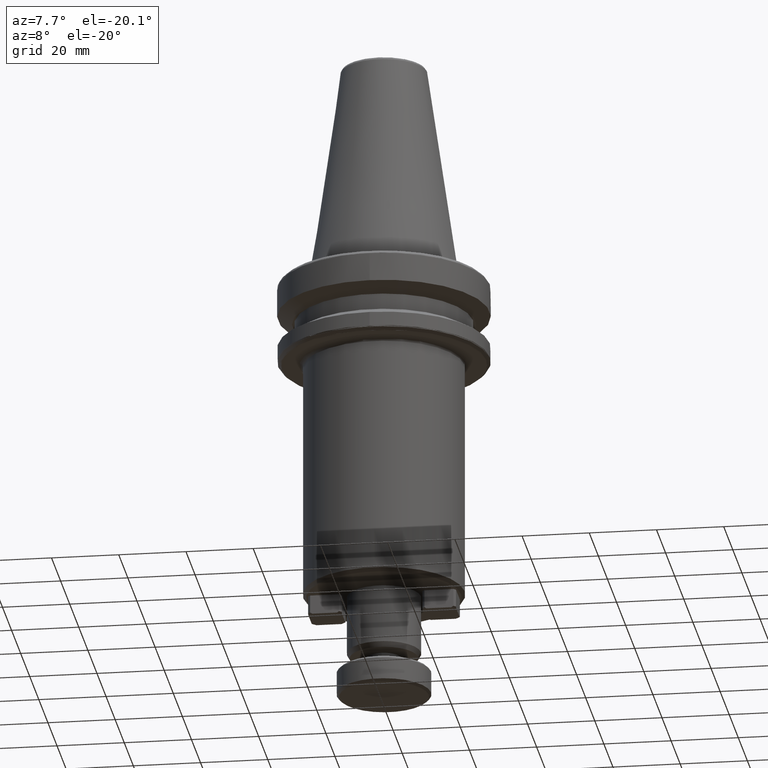
[diagram: clean part render]
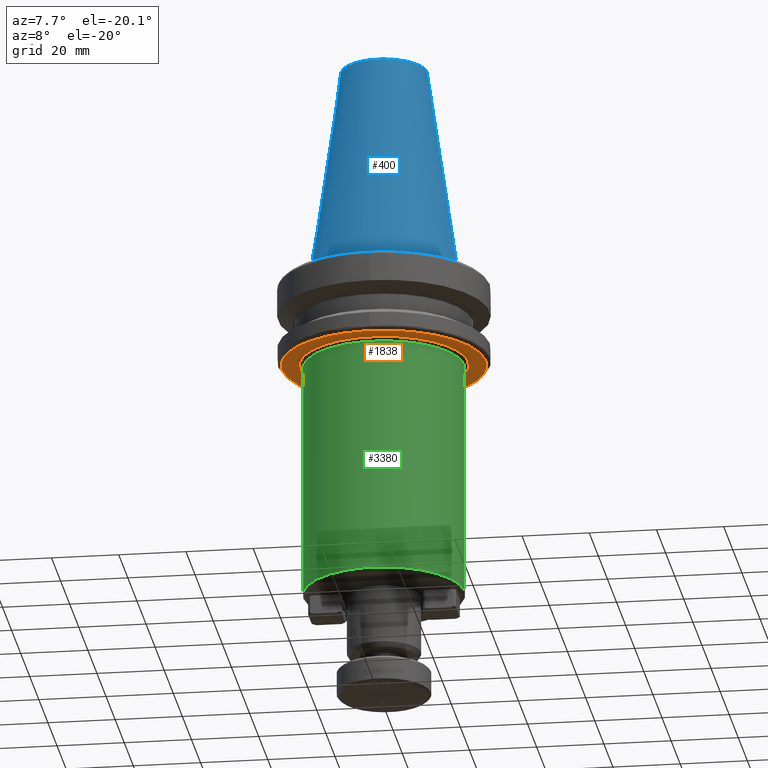
[diagram: same view with three faces highlighted in distinct colors, each labeled with its STEP entity id]
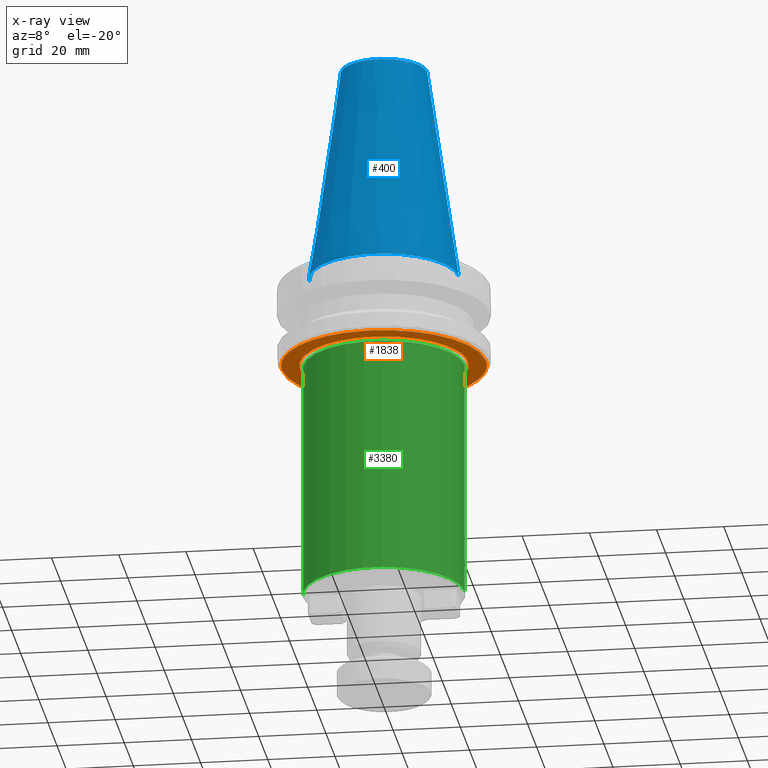
[diagram: x-ray of the same camera — body ghosted, the three highlighted faces saturated]
A machine part, auxiliary view with three faces highlighted in distinct colors.
The next image is the same camera in x-ray (body ghosted, the three faces saturated) — at least one of them is partly hidden behind the body in this view.
Their STEP definitions:

[orange] entity #1838 — the highlighted planar face has unit normal (0, 0, -1).
#4 = CARTESIAN_POINT ( 'NONE',  ( -23.99290541597505600, -18.56180435312283800, -26.99999999999999600 ) ) ;
#10 = CARTESIAN_POINT ( 'NONE',  ( 15.17254742358574800, -26.27005725161817300, -27.00000000000000000 ) ) ;
#12 = CARTESIAN_POINT ( 'NONE',  ( 16.05453526982751100, -25.74928150033352700, -26.99999999999999600 ) ) ;
#14 = CARTESIAN_POINT ( 'NONE',  ( -22.63013075903289800, -20.20685642576743000, -26.99999999999999600 ) ) ;
#18 = CARTESIAN_POINT ( 'NONE',  ( -23.71392031513075000, -18.91927227084005400, -27.00000000000000000 ) ) ;
#21 = CARTESIAN_POINT ( 'NONE',  ( -24.13073339504353100, -18.38166501038345400, -26.99999999999999300 ) ) ;
#28 = CARTESIAN_POINT ( 'NONE',  ( -24.18944583506854700, -18.30416128123497900, -27.00000000000000400 ) ) ;
#29 = CARTESIAN_POINT ( 'NONE',  ( 16.79048312169220100, -25.27042344623796300, -27.00000000000000400 ) ) ;
#30 = CARTESIAN_POINT ( 'NONE',  ( -24.22850819644932900, -18.25242520542738200, -27.00000000000001100 ) ) ;
#33 = CARTESIAN_POINT ( 'NONE',  ( -25.69731750033675900, -16.11971193770496700, -26.99999999999999300 ) ) ;
#35 = CARTESIAN_POINT ( 'NONE',  ( -25.46661501852462100, -16.48420604147238000, -27.00000000000000000 ) ) ;
#37 = CARTESIAN_POINT ( 'NONE',  ( 17.30231536618856900, -24.91589509519671700, -27.00000000000000400 ) ) ;
#38 = CARTESIAN_POINT ( 'NONE',  ( 17.33031395297760100, -24.89642651871314500, -27.00000000000000700 ) ) ;
#40 = CARTESIAN_POINT ( 'NONE',  ( 17.38830577275359700, -24.85595788072957600, -27.00000000000000400 ) ) ;
#41 = CARTESIAN_POINT ( 'NONE',  ( -25.81104396035033900, -15.93634838797775400, -27.00000000000000400 ) ) ;
#43 = CARTESIAN_POINT ( 'NONE',  ( 17.47517895631656900, -24.79510947113902500, -27.00000000000000400 ) ) ;
#48 = CARTESIAN_POINT ( 'NONE',  ( -25.85943570445062500, -15.85752475998534000, -27.00000000000000400 ) ) ;
#56 = CARTESIAN_POINT ( 'NONE',  ( -25.89161949666544500, -15.80492250809308000, -27.00000000000000400 ) ) ;
#57 = CARTESIAN_POINT ( 'NONE',  ( 17.67708122858955000, -24.65211168045468400, -27.00000000000000400 ) ) ;
#59 = CARTESIAN_POINT ( 'NONE',  ( -25.90851682547786400, -15.77720567674442300, -27.00000000000000400 ) ) ;
#60 = FACE_BOUND ( 'NONE', #1899, .T. ) ;
#63 = CARTESIAN_POINT ( 'NONE',  ( -26.16641375509232100, -15.35279778012197700, -27.00000000000000700 ) ) ;
#64 = CARTESIAN_POINT ( 'NONE',  ( -26.51634769467691700, -14.74575627387863400, -27.00000000000000000 ) ) ;
#67 = CARTESIAN_POINT ( 'NONE',  ( 18.07767848230638900, -24.36204342586032800, -26.99999999999999600 ) ) ;
#70 = CARTESIAN_POINT ( 'NONE',  ( -26.89983123157467300, -14.02375570369693100, -26.99999999999999600 ) ) ;
#71 = CARTESIAN_POINT ( 'NONE',  ( 18.86604382642358100, -23.76561622376904700, -27.00000000000000000 ) ) ;
#73 = CARTESIAN_POINT ( 'NONE',  ( -27.08537981853583800, -13.65930904871496500, -27.00000000000000400 ) ) ;
#74 = CARTESIAN_POINT ( 'NONE',  ( -27.17660581664448200, -13.47622412875120900, -27.00000000000000400 ) ) ;
#79 = CARTESIAN_POINT ( 'NONE',  ( 19.51979269855290200, -23.22646600557209600, -27.00000000000000000 ) ) ;
#83 = CARTESIAN_POINT ( 'NONE',  ( 19.97247930315020200, -22.83138023057095700, -27.00000000000000000 ) ) ;
#88 = CARTESIAN_POINT ( 'NONE',  ( 19.99695510746243000, -22.80994345806951200, -27.00000000000000000 ) ) ;
#90 = CARTESIAN_POINT ( 'NONE',  ( 20.04793994534551900, -22.76514475064298200, -27.00000000000000000 ) ) ;
#98 = CARTESIAN_POINT ( 'NONE',  ( 20.12429761194118800, -22.69782509428403500, -27.00000000000000700 ) ) ;
#105 = CARTESIAN_POINT ( 'NONE',  ( 20.30162836906154000, -22.53989472957914900, -27.00000000000000000 ) ) ;
#108 = CARTESIAN_POINT ( 'NONE',  ( -27.22183174185582600, -13.38446627065113300, -27.00000000000000700 ) ) ;
#113 = CARTESIAN_POINT ( 'NONE',  ( 20.65294135689086400, -22.22062933403333000, -26.99999999999999600 ) ) ;
#114 = CARTESIAN_POINT ( 'NONE',  ( -27.24113133683716700, -13.34509531758290600, -26.99999999999998900 ) ) ;
#115 = CARTESIAN_POINT ( 'NONE',  ( 21.34217322690385600, -21.56847987839760700, -27.00000000000000000 ) ) ;
#118 = CARTESIAN_POINT ( 'NONE',  ( -27.25397930140365000, -13.31883775848418200, -26.99999999999999600 ) ) ;
#120 = CARTESIAN_POINT ( 'NONE',  ( 21.90998207723676900, -20.98614834863420200, -26.99999999999999600 ) ) ;
#121 = CARTESIAN_POINT ( 'NONE',  ( -27.26090848176154000, -13.30464868641352700, -26.99999999999998900 ) ) ;
#122 = CARTESIAN_POINT ( 'NONE',  ( -27.64383232676313900, -12.51919696689708600, -27.00000000000000400 ) ) ;
#125 = CARTESIAN_POINT ( 'NONE',  ( 22.30133716546184900, -20.56263888184942300, -27.00000000000000000 ) ) ;
#126 = FACE_OUTER_BOUND ( 'NONE', #2703, .T. ) ;
#127 = CARTESIAN_POINT ( 'NONE',  ( -28.15837465520825900, -11.33930149011830600, -26.99999999999999600 ) ) ;
#128 = CARTESIAN_POINT ( 'NONE',  ( 22.32228039465907100, -20.53989862152687000, -27.00000000000000400 ) ) ;
#130 = CARTESIAN_POINT ( 'NONE',  ( -28.66941225224598000, -9.928030280981740700, -27.00000000000000000 ) ) ;
#131 = CARTESIAN_POINT ( 'NONE',  ( 22.36612433062360600, -20.49214719188344700, -27.00000000000000400 ) ) ;
#132 = CARTESIAN_POINT ( 'NONE',  ( 22.43177005379504500, -20.42042119967301200, -26.99999999999999600 ) ) ;
#134 = CARTESIAN_POINT ( 'NONE',  ( -28.90261560422776900, -9.213713054856466300, -27.00000000000000000 ) ) ;
#135 = CARTESIAN_POINT ( 'NONE',  ( -29.01363841858439900, -8.854384036404589200, -26.99999999999999600 ) ) ;
#138 = CARTESIAN_POINT ( 'NONE',  ( -29.09446477738688200, -8.583937720207881500, -27.00000000000000700 ) ) ;
#139 = CARTESIAN_POINT ( 'NONE',  ( 22.58410214243423700, -20.25236861696492200, -26.99999999999999300 ) ) ;
#142 = CARTESIAN_POINT ( 'NONE',  ( 22.88540125800272700, -19.91349571468050400, -27.00000000000000000 ) ) ;
#143 = CARTESIAN_POINT ( 'NONE',  ( 23.47453924229999300, -19.22467896263853900, -26.99999999999999600 ) ) ;
#145 = CARTESIAN_POINT ( 'NONE',  ( -29.06775511035414500, -8.674176925831343300, -27.00000000000000000 ) ) ;
#146 = CARTESIAN_POINT ( 'NONE',  ( -29.10583706064687000, -8.545234707011369200, -26.99999999999999300 ) ) ;
#150 = CARTESIAN_POINT ( 'NONE',  ( -29.11340197906533700, -8.519426238673842600, -26.99999999999999600 ) ) ;
#151 = CARTESIAN_POINT ( 'NONE',  ( 23.95643994854391700, -18.61528583664868500, -27.00000000000001100 ) ) ;
#153 = CARTESIAN_POINT ( 'NONE',  ( 24.28688989183454400, -18.17467017683240000, -27.00000000000001100 ) ) ;
#158 = CARTESIAN_POINT ( 'NONE',  ( 24.30441795796863500, -18.15122047689133600, -27.00000000000000700 ) ) ;
#160 = CARTESIAN_POINT ( 'NONE',  ( 24.34126704699827200, -18.10177416173495900, -26.99999999999999600 ) ) ;
#164 = CARTESIAN_POINT ( 'NONE',  ( -29.11760386127893300, -8.505052381505967300, -26.99999999999998900 ) ) ;
#166 = CARTESIAN_POINT ( 'NONE',  ( -29.33458234849642200, -7.761172850343426100, -27.00000000000000700 ) ) ;
#168 = CARTESIAN_POINT ( 'NONE',  ( -29.61292853113878800, -6.653480282939932900, -27.00000000000000700 ) ) ;
#169 = CARTESIAN_POINT ( 'NONE',  ( 24.39642347148004800, -18.02752664200955800, -27.00000000000000000 ) ) ;
#171 = CARTESIAN_POINT ( 'NONE',  ( -29.86396562765282100, -5.345352775223001500, -26.99999999999999300 ) ) ;
#173 = CARTESIAN_POINT ( 'NONE',  ( 24.52430133183192500, -17.85373610038117300, -27.00000000000000000 ) ) ;
#174 = CARTESIAN_POINT ( 'NONE',  ( 24.77677519877989800, -17.50396970138118400, -27.00000000000000700 ) ) ;
#177 = CARTESIAN_POINT ( 'NONE',  ( -29.97105914676766900, -4.687334143261349300, -27.00000000000000400 ) ) ;
#185 = CARTESIAN_POINT ( 'NONE',  ( 25.26859551765282700, -16.79569564040834000, -26.99999999999999600 ) ) ;
#190 = CARTESIAN_POINT ( 'NONE',  ( -30.01999964903953000, -4.357336107754700400, -26.99999999999999600 ) ) ;
#191 = CARTESIAN_POINT ( 'NONE',  ( 25.66765165093301300, -16.17361856590670800, -26.99999999999999600 ) ) ;
#195 = CARTESIAN_POINT ( 'NONE',  ( 25.93968945698781100, -15.72590437763287600, -26.99999999999999300 ) ) ;
#196 = CARTESIAN_POINT ( 'NONE',  ( -24.24896127768944600, -18.22524170751973600, -27.00000000000000400 ) ) ;
#202 = CARTESIAN_POINT ( 'NONE',  ( 25.95401150601513200, -15.70225232313498700, -26.99999999999999600 ) ) ;
#203 = CARTESIAN_POINT ( 'NONE',  ( -24.56329777486533000, -17.80614134565118400, -26.99999999999999600 ) ) ;
#204 = CARTESIAN_POINT ( 'NONE',  ( 25.98422421869482300, -15.65220437513537300, -26.99999999999999600 ) ) ;
#206 = CARTESIAN_POINT ( 'NONE',  ( -24.99221180776039100, -17.20426226625917100, -27.00000000000000400 ) ) ;
#207 = CARTESIAN_POINT ( 'NONE',  ( 26.02943172748112100, -15.57707268835614800, -26.99999999999999600 ) ) ;
#209 = CARTESIAN_POINT ( 'NONE',  ( 26.13413499301664400, -15.40134706574638000, -26.99999999999999300 ) ) ;
#212 = CARTESIAN_POINT ( 'NONE',  ( -30.04331833585407500, -4.192089910119944000, -27.00000000000000000 ) ) ;
#213 = CARTESIAN_POINT ( 'NONE',  ( 26.34041783755762400, -15.04822240669363600, -27.00000000000000000 ) ) ;
#214 = CARTESIAN_POINT ( 'NONE',  ( -30.05468978818101200, -4.109405016332190500, -27.00000000000000400 ) ) ;
#220 = CARTESIAN_POINT ( 'NONE',  ( -30.05950157680389600, -4.073955391500941700, -27.00000000000000400 ) ) ;
#222 = CARTESIAN_POINT ( 'NONE',  ( 26.74048878051925000, -14.33527943325529800, -26.99999999999999600 ) ) ;
#225 = CARTESIAN_POINT ( 'NONE',  ( 27.06198716685152300, -13.71271061830905000, -27.00000000000000000 ) ) ;
#228 = CARTESIAN_POINT ( 'NONE',  ( -30.06269572678675300, -4.050319365662467400, -26.99999999999998900 ) ) ;
#230 = CARTESIAN_POINT ( 'NONE',  ( -30.06447116071622700, -4.037117130667978100, -27.00000000000000000 ) ) ;
#231 = CARTESIAN_POINT ( 'NONE',  ( 27.27320000693183700, -13.27943525741485300, -27.00000000000000400 ) ) ;
#232 = CARTESIAN_POINT ( 'NONE',  ( -30.24483282093723300, -2.690588715281133900, -27.00000000000000700 ) ) ;
#233 = CARTESIAN_POINT ( 'NONE',  ( 27.27857740594732800, -13.26838397859152400, -26.99999999999999600 ) ) ;
#236 = CARTESIAN_POINT ( 'NONE',  ( 27.29033024350818300, -13.24419357007037800, -26.99999999999999600 ) ) ;
#239 = CARTESIAN_POINT ( 'NONE',  ( -30.33431457484533000, -1.348362406648584600, -27.00000000000000400 ) ) ;
#240 = CARTESIAN_POINT ( 'NONE',  ( 27.30793454930152100, -13.20789838398157400, -27.00000000000000400 ) ) ;
#243 = CARTESIAN_POINT ( 'NONE',  ( -30.33431456895414500, 0.0000000000000000000, -27.00000000001086800 ) ) ;
#244 = CARTESIAN_POINT ( 'NONE',  ( 27.34883660898347200, -13.12314260329140600, -27.00000000000000000 ) ) ;
#248 = CARTESIAN_POINT ( 'NONE',  ( 27.42994211300421300, -12.95336298931259500, -27.00000000000000000 ) ) ;
#249 = CARTESIAN_POINT ( 'NONE',  ( 27.58935865967296800, -12.61273155096109200, -26.99999999999999300 ) ) ;
#251 = CARTESIAN_POINT ( 'NONE',  ( 27.89701390751955800, -11.92717983268256400, -26.99999999999999300 ) ) ;
#256 = CARTESIAN_POINT ( 'NONE',  ( 28.46761302124911100, -10.53892102982341300, -27.00000000000000000 ) ) ;
#258 = CARTESIAN_POINT ( 'NONE',  ( -24.97234513282417700, -1.386895877690875100, -26.99999999999999300 ) ) ;
#259 = CARTESIAN_POINT ( 'NONE',  ( 28.88004989250821100, -9.319575713711962800, -27.00000000000000400 ) ) ;
#261 = CARTESIAN_POINT ( 'NONE',  ( 29.12470593090376200, -8.480702336765839200, -27.00000000000000700 ) ) ;
#264 = CARTESIAN_POINT ( 'NONE',  ( -24.89168510332539700, -2.353778102940315100, -27.00000000000000700 ) ) ;
#265 = CARTESIAN_POINT ( 'NONE',  ( 29.12761359701639600, -8.470707606926298500, -26.99999999999999600 ) ) ;
#266 = CARTESIAN_POINT ( 'NONE',  ( -24.83925608415117700, -2.836440619025394600, -27.00000000000000700 ) ) ;
#270 = CARTESIAN_POINT ( 'NONE',  ( -24.81001682345786500, -3.077577227933019800, -27.00000000000000000 ) ) ;
#274 = CARTESIAN_POINT ( 'NONE',  ( -24.79464100533467200, -3.198096870103117200, -27.00000000000000000 ) ) ;
#275 = CARTESIAN_POINT ( 'NONE',  ( 29.13426461266712800, -8.447802841274084400, -26.99999999999999600 ) ) ;
#277 = CARTESIAN_POINT ( 'NONE',  ( -24.78676404932891200, -3.258344525617217000, -27.00000000000000000 ) ) ;
#278 = CARTESIAN_POINT ( 'NONE',  ( 29.14422054662914300, -8.413441401243822800, -27.00000000000000000 ) ) ;
#279 = CARTESIAN_POINT ( 'NONE',  ( -24.78334770098129500, -3.284162342500928800, -27.00000000000000700 ) ) ;
#284 = CARTESIAN_POINT ( 'NONE',  ( 29.47033861248275600, -7.206134666315078300, -26.99999999999999300 ) ) ;
#288 = CARTESIAN_POINT ( 'NONE',  ( -24.78106113318075600, -3.301373641110497000, -26.99999999999999300 ) ) ;
#289 = CARTESIAN_POINT ( 'NONE',  ( 29.77054002071780300, -5.908407303469501500, -27.00000000000000700 ) ) ;
#292 = CARTESIAN_POINT ( 'NONE',  ( -24.78006498516242200, -3.308846602342474100, -26.99999999999999300 ) ) ;
#294 = CARTESIAN_POINT ( 'NONE',  ( -24.69530998136558600, -3.941782048878073900, -26.99999999999999600 ) ) ;
#295 = CARTESIAN_POINT ( 'NONE',  ( -24.53537653812576700, -4.869357523617695800, -27.00000000000000700 ) ) ;
#298 = CARTESIAN_POINT ( 'NONE',  ( 29.96460452612414800, -4.782885916286588200, -26.99999999999999300 ) ) ;
#299 = CARTESIAN_POINT ( 'NONE',  ( 30.06745157541786600, -4.014863191672709800, -27.00000000000000400 ) ) ;
#301 = CARTESIAN_POINT ( 'NONE',  ( 30.06866015639784000, -4.005796829338779100, -26.99999999999999600 ) ) ;
#306 = CARTESIAN_POINT ( 'NONE',  ( -24.28796308207945400, -5.938891299023930900, -27.00000000000000000 ) ) ;
#310 = CARTESIAN_POINT ( 'NONE',  ( -24.14905024432300000, -6.470498783779555100, -27.00000000000000000 ) ) ;
#311 = CARTESIAN_POINT ( 'NONE',  ( 30.07143461507612900, -3.984913671726914200, -27.00000000000000000 ) ) ;
#314 = CARTESIAN_POINT ( 'NONE',  ( -24.07579229801143600, -6.735512675420493700, -27.00000000000001100 ) ) ;
#315 = CARTESIAN_POINT ( 'NONE',  ( 30.07557991849509100, -3.953587874256018000, -27.00000000000000400 ) ) ;
#320 = CARTESIAN_POINT ( 'NONE',  ( -24.03821294299733000, -6.867822158556734300, -26.99999999999998900 ) ) ;
#323 = CARTESIAN_POINT ( 'NONE',  ( -24.01918567002570300, -6.933927534453801800, -27.00000000000000000 ) ) ;
#324 = CARTESIAN_POINT ( 'NONE',  ( 30.08513760094988100, -3.880486919452216900, -27.00000000000000400 ) ) ;
#326 = CARTESIAN_POINT ( 'NONE',  ( 30.10379419710161700, -3.734255300357771200, -26.99999999999999600 ) ) ;
#329 = CARTESIAN_POINT ( 'NONE',  ( -24.01098021115258200, -6.962247831480184800, -27.00000000000000700 ) ) ;
#330 = CARTESIAN_POINT ( 'NONE',  ( 30.13927231437377700, -3.441673224221533100, -27.00000000000000000 ) ) ;
#335 = CARTESIAN_POINT ( 'NONE',  ( -24.00549859116742400, -6.981125678751523900, -26.99999999999999300 ) ) ;
#336 = CARTESIAN_POINT ( 'NONE',  ( -24.00310187882185200, -6.989364176735328700, -27.00000000000000000 ) ) ;
#339 = CARTESIAN_POINT ( 'NONE',  ( -23.80147976044971600, -7.680692682666898600, -27.00000000000000000 ) ) ;
#340 = CARTESIAN_POINT ( 'NONE',  ( 30.20288824879281000, -2.856033720159603100, -27.00000000000000000 ) ) ;
#344 = CARTESIAN_POINT ( 'NONE',  ( -23.46157834477308800, -8.685594217204533500, -27.00000000000000000 ) ) ;
#345 = VERTEX_POINT ( 'NONE', #800 ) ;
#347 = CARTESIAN_POINT ( 'NONE',  ( -22.99131484473959800, -9.829738734018738100, -26.99999999999999300 ) ) ;
#349 = CARTESIAN_POINT ( 'NONE',  ( 30.30075891712979100, -1.682853304877992600, -26.99999999999999600 ) ) ;
#352 = CARTESIAN_POINT ( 'NONE',  ( -22.73775513262016200, -10.39475084072259700, -27.00000000000000400 ) ) ;
#357 = CARTESIAN_POINT ( 'NONE',  ( -22.60636828603478000, -10.67549185614869100, -26.99999999999999600 ) ) ;
#363 = CARTESIAN_POINT ( 'NONE',  ( -22.53952311511066100, -10.81542110438029700, -27.00000000000000700 ) ) ;
#364 = CARTESIAN_POINT ( 'NONE',  ( -25.00000000008090200, -0.5554702107697350200, -26.99999999999999600 ) ) ;
#369 = CARTESIAN_POINT ( 'NONE',  ( -22.51062838165074000, -10.87529622659067200, -27.00000000000000400 ) ) ;
#370 = CARTESIAN_POINT ( 'NONE',  ( -22.49131038088548400, -10.91519196237466500, -27.00000000000000700 ) ) ;
#372 = CARTESIAN_POINT ( 'NONE',  ( 30.33431456895414500, 0.0000000000000000000, -27.00000000001087500 ) ) ;
#375 = CARTESIAN_POINT ( 'NONE',  ( -22.48245895555256600, -10.93341642091536100, -27.00000000000000700 ) ) ;
#379 = CARTESIAN_POINT ( 'NONE',  ( -22.30312862250755000, -11.30129231896676400, -27.00000000000000000 ) ) ;
#380 = CARTESIAN_POINT ( 'NONE',  ( -22.03817688641920100, -11.81436188171040200, -27.00000000000000000 ) ) ;
#383 = CARTESIAN_POINT ( 'NONE',  ( 30.33431457484534000, 1.348362406678144800, -27.00000000000000400 ) ) ;
#385 = CARTESIAN_POINT ( 'NONE',  ( 30.24483282093724100, 2.690588715310696000, -27.00000000000000400 ) ) ;
#387 = CARTESIAN_POINT ( 'NONE',  ( 30.06447116071621700, 4.037117130667747100, -27.00000000000000400 ) ) ;
#390 = CARTESIAN_POINT ( 'NONE',  ( -21.70845240054728700, -12.40194490727195200, -27.00000000000000400 ) ) ;
#391 = CARTESIAN_POINT ( 'NONE',  ( -21.53843662583576400, -12.69298688730955500, -27.00000000000000700 ) ) ;
#394 = CARTESIAN_POINT ( 'NONE',  ( 30.06269572678653300, 4.050319365663629200, -27.00000000000000000 ) ) ;
#395 = CARTESIAN_POINT ( 'NONE',  ( 30.05950157680345600, 4.073955391503255400, -27.00000000000000000 ) ) ;
#399 = CARTESIAN_POINT ( 'NONE',  ( -21.45214035553613400, -12.83782049414256000, -27.00000000000000400 ) ) ;
#401 = CARTESIAN_POINT ( 'NONE',  ( -21.41488015763402300, -12.89974474353118200, -27.00000000000000000 ) ) ;
#405 = CARTESIAN_POINT ( 'NONE',  ( 30.05468978818021600, 4.109405016336230800, -26.99999999999999600 ) ) ;
#406 = CARTESIAN_POINT ( 'NONE',  ( -21.38997867413053600, -12.94099484392427300, -27.00000000000000000 ) ) ;
#411 = CARTESIAN_POINT ( 'NONE',  ( -21.37817230117153900, -12.96049254410351300, -26.99999999999999600 ) ) ;
#413 = CARTESIAN_POINT ( 'NONE',  ( -21.15399095691158500, -13.32944866815620300, -27.00000000000000400 ) ) ;
#414 = CARTESIAN_POINT ( 'NONE',  ( 30.04331833585253300, 4.192089910127879900, -26.99999999999999600 ) ) ;
#416 = CARTESIAN_POINT ( 'NONE',  ( -20.82512215673866900, -13.84211380441892000, -26.99999999999999300 ) ) ;
#419 = CARTESIAN_POINT ( 'NONE',  ( 30.01999964903654200, 4.357336107770085400, -26.99999999999999600 ) ) ;
#425 = CARTESIAN_POINT ( 'NONE',  ( 29.97105914676207700, 4.687334143290049000, -26.99999999999999600 ) ) ;
#426 = CARTESIAN_POINT ( 'NONE',  ( -20.41978128126885700, -14.42584845909424900, -27.00000000000000000 ) ) ;
#427 = CARTESIAN_POINT ( 'NONE',  ( 29.86396562764328500, 5.345352775272209200, -27.00000000000000400 ) ) ;
#433 = CARTESIAN_POINT ( 'NONE',  ( 29.61292853112605500, 6.653480283005531100, -26.99999999999999300 ) ) ;
#435 = CARTESIAN_POINT ( 'NONE',  ( 29.33458234848915300, 7.761172850380900100, -27.00000000000000000 ) ) ;
#439 = CARTESIAN_POINT ( 'NONE',  ( 29.11760386127905400, 8.505052381505384700, -26.99999999999999600 ) ) ;
#440 = CARTESIAN_POINT ( 'NONE',  ( -20.21169569138356800, -14.71412211869078000, -26.99999999999999600 ) ) ;
#441 = CARTESIAN_POINT ( 'NONE',  ( 29.11340197906474700, 8.519426238675443100, -26.99999999999999300 ) ) ;
#444 = CARTESIAN_POINT ( 'NONE',  ( 29.10583706064569000, 8.545234707014547100, -26.99999999999999300 ) ) ;
#446 = CARTESIAN_POINT ( 'NONE',  ( -20.10629910840335600, -14.85736053155376300, -27.00000000000000400 ) ) ;
#448 = CARTESIAN_POINT ( 'NONE',  ( -20.03046787302129400, -14.95931003864875400, -26.99999999999999600 ) ) ;
#451 = CARTESIAN_POINT ( 'NONE',  ( -20.06083904683234200, -14.91855590486606100, -27.00000000000001100 ) ) ;
#452 = CARTESIAN_POINT ( 'NONE',  ( 29.09446477738482500, 8.583937720213416600, -26.99999999999999300 ) ) ;
#454 = CARTESIAN_POINT ( 'NONE',  ( -19.74369920666840300, -15.34174919973004600, -26.99999999999999600 ) ) ;
#455 = CARTESIAN_POINT ( 'NONE',  ( 29.06775511035010200, 8.674176925842232300, -27.00000000000000000 ) ) ;
#463 = CARTESIAN_POINT ( 'NONE',  ( 29.01363841857655500, 8.854384036425651400, -27.00000000000000000 ) ) ;
#464 = CARTESIAN_POINT ( 'NONE',  ( -18.61268363954305400, -16.69095500966367900, -26.99999999999998600 ) ) ;
#466 = CARTESIAN_POINT ( 'NONE',  ( -18.48713243377964600, -16.82946360284342200, -27.00000000000000400 ) ) ;
#467 = CARTESIAN_POINT ( 'NONE',  ( 28.90261560421313500, 9.213713054895801900, -26.99999999999999600 ) ) ;
#469 = CARTESIAN_POINT ( 'NONE',  ( 28.66941225222090500, 9.928030281049141000, -27.00000000000000000 ) ) ;
#471 = CARTESIAN_POINT ( 'NONE',  ( -18.43302729515722800, -16.88858043800878800, -27.00000000000000700 ) ) ;
#472 = CARTESIAN_POINT ( 'NONE',  ( 28.15837465517482800, 11.33930149020817300, -26.99999999999999600 ) ) ;
#473 = CARTESIAN_POINT ( 'NONE',  ( 27.64383232674404000, 12.51919696694843200, -26.99999999999999600 ) ) ;
#477 = CARTESIAN_POINT ( 'NONE',  ( -18.39689109629570800, -16.92793744134501200, -26.99999999999999600 ) ) ;
#478 = CARTESIAN_POINT ( 'NONE',  ( 27.26090848176184200, 13.30464868641272800, -27.00000000000000000 ) ) ;
#479 = CARTESIAN_POINT ( 'NONE',  ( -18.37962703015783800, -16.94668296359880300, -27.00000000000000700 ) ) ;
#486 = CARTESIAN_POINT ( 'NONE',  ( 27.25397930140133000, 13.31883775848854900, -26.99999999999998900 ) ) ;
#488 = CARTESIAN_POINT ( 'NONE',  ( -18.05711505946858600, -17.29569552926273300, -26.99999999999999600 ) ) ;
#491 = CARTESIAN_POINT ( 'NONE',  ( 27.24113133683257400, 13.34509531759153800, -27.00000000000000000 ) ) ;
#493 = CARTESIAN_POINT ( 'NONE',  ( -17.58917210408080900, -17.77560775576667500, -27.00000000000000400 ) ) ;
#495 = CARTESIAN_POINT ( 'NONE',  ( -17.02113276472619300, -18.31308541103733500, -26.99999999999999300 ) ) ;
#496 = CARTESIAN_POINT ( 'NONE',  ( 27.22183174184785400, 13.38446627066604600, -27.00000000000000400 ) ) ;
#497 = CARTESIAN_POINT ( 'NONE',  ( -16.73158662219833200, -18.57621925309337000, -27.00000000000000000 ) ) ;
#499 = CARTESIAN_POINT ( 'NONE',  ( -16.58543193272174300, -18.70638492772656000, -27.00000000000000700 ) ) ;
#501 = CARTESIAN_POINT ( 'NONE',  ( 27.17660581662907400, 13.47622412878006800, -27.00000000000000000 ) ) ;
#502 = CARTESIAN_POINT ( 'NONE',  ( 27.08537981850708900, 13.65930904876886800, -26.99999999999999600 ) ) ;
#504 = CARTESIAN_POINT ( 'NONE',  ( 26.89983123152540000, 14.02375570378933000, -26.99999999999999600 ) ) ;
#506 = CARTESIAN_POINT ( 'NONE',  ( -16.52249814761481200, -18.76186994977046400, -27.00000000000000400 ) ) ;
#509 = CARTESIAN_POINT ( 'NONE',  ( -16.48047649953338500, -18.79879323844759400, -26.99999999999999600 ) ) ;
#510 = CARTESIAN_POINT ( 'NONE',  ( 26.51634769461122300, 14.74575627400183300, -27.00000000000000000 ) ) ;
#511 = CARTESIAN_POINT ( 'NONE',  ( -16.46030063428676000, -18.81646408734648500, -26.99999999999999600 ) ) ;
#512 = CARTESIAN_POINT ( 'NONE',  ( 26.16641375505478400, 15.35279778019237400, -27.00000000000000700 ) ) ;
#514 = CARTESIAN_POINT ( 'NONE',  ( -16.08724464683681900, -19.14205405009708700, -27.00000000000000400 ) ) ;
#515 = CARTESIAN_POINT ( 'NONE',  ( 25.90851682548020900, 15.77720567674003100, -26.99999999999999600 ) ) ;
#516 = CARTESIAN_POINT ( 'NONE',  ( 25.89161949666274200, 15.80492250809644600, -27.00000000000000000 ) ) ;
#517 = CARTESIAN_POINT ( 'NONE',  ( -15.54847591869298600, -19.58638038223596200, -27.00000000000000000 ) ) ;
#518 = CARTESIAN_POINT ( 'NONE',  ( 25.85943570444532800, 15.85752475999188600, -27.00000000000000700 ) ) ;
#523 = CARTESIAN_POINT ( 'NONE',  ( -14.89873486197340200, -20.07793345280624600, -26.99999999999999600 ) ) ;
#527 = CARTESIAN_POINT ( 'NONE',  ( 25.81104396034130100, 15.93634838798891800, -27.00000000000000000 ) ) ;
#534 = CARTESIAN_POINT ( 'NONE',  ( 25.69731750031988300, 16.11971193772581400, -26.99999999999999300 ) ) ;
#536 = CARTESIAN_POINT ( 'NONE',  ( -14.56856994847564500, -20.31700307552677700, -27.00000000000000000 ) ) ;
#537 = CARTESIAN_POINT ( 'NONE',  ( 25.46661501849568400, 16.48420604150809900, -26.99999999999999300 ) ) ;
#538 = CARTESIAN_POINT ( 'NONE',  ( -14.42593618873277200, -20.41802428971460200, -27.00000000000000000 ) ) ;
#539 = CARTESIAN_POINT ( 'NONE',  ( -14.33059490199285200, -20.48505238905102000, -26.99999999999999600 ) ) ;
#540 = CARTESIAN_POINT ( 'NONE',  ( -14.28449885749686700, -20.51722875656969700, -26.99999999999999600 ) ) ;
#541 = CARTESIAN_POINT ( 'NONE',  ( 24.99221180772177700, 17.20426226630679900, -26.99999999999999300 ) ) ;
#545 = CARTESIAN_POINT ( 'NONE',  ( 24.56329777484327800, 17.80614134567841600, -27.00000000000000700 ) ) ;
#546 = CARTESIAN_POINT ( 'NONE',  ( -13.83788814399838800, -20.82658275628064700, -27.00000000000000000 ) ) ;
#547 = CARTESIAN_POINT ( 'NONE',  ( -13.23137647302086100, -21.22122151932586600, -26.99999999999999600 ) ) ;
#549 = CARTESIAN_POINT ( 'NONE',  ( -12.50447576416622800, -21.65042524554892700, -27.00000000000000700 ) ) ;
#550 = CARTESIAN_POINT ( 'NONE',  ( -12.13619946989370000, -21.85722506766133900, -27.00000000000000000 ) ) ;
#552 = B_SPLINE_CURVE_WITH_KNOTS ( 'NONE', 3,
 ( #1366, #364, #258, #264, #266, #270, #274, #277, #279, #288, #292, #294, #295, #306, #310, #314, #320, #323, #329, #335, #336, #339, #344, #347, #352, #357, #363, #369, #370, #375, #379, #380, #390, #391, #399, #401, #406, #411, #413, #416, #426, #440, #446, #451, #448, #1812, #454, #2507, #3367, #464, #466, #471, #477, #479, #488, #493, #495, #497, #499, #506, #509, #511, #514, #517, #523, #536, #538, #539, #540, #546, #547, #549, #550, #553, #558, #563, #573, #576, #578, #587, #592, #593, #595, #602, #604, #613, #621, #623, #627, #628, #635, #642, #643, #650, #653, #654, #657, #665, #671, #676, #687, #690, #691, #695, #700, #716, #733, #742, #743, #746, #749, #754, #755, #762, #767, #771, #773, #776, #795, #804, #806, #808, #812, #817, #819, #826, #835, #837, #839, #844, #849, #851, #860, #871, #877, #879, #885, #886, #890, #892, #894, #895, #897, #904, #907, #911, #912, #916, #920, #922, #923, #930, #931, #935, #936, #938, #942, #944, #946, #951, #955, #956, #957, #959, #965, #967, #973, #974, #977, #985, #990, #991, #996, #1000, #1001, #1010, #1015, #1017, #1024, #1027, #1028, #1038, #1041, #1042, #1045, #1047, #1052, #1053, #1058, #1068, #1071 ),
 .UNSPECIFIED., .F., .F.,
 ( 4, 1, 1, 1, 1, 1, 1, 2, 2, 1, 1, 1, 1, 1, 1, 2, 2, 1, 1, 1, 1, 1, 2, 2, 1, 1, 1, 1, 2, 2, 1, 1, 1, 1, 2, 2, 1, 1, 1, 1, 2, 2, 1, 1, 1, 1, 2, 2, 1, 1, 1, 2, 2, 1, 1, 1, 2, 2, 1, 1, 1, 2, 2, 1, 1, 2, 2, 1, 2, 2, 2, 1, 2, 2, 1, 1, 2, 2, 1, 1, 1, 2, 2, 1, 1, 1, 2, 2, 1, 1, 1, 2, 2, 1, 1, 1, 1, 2, 2, 1, 1, 1, 1, 2, 2, 1, 1, 1, 1, 2, 2, 1, 1, 1, 1, 2, 2, 1, 1, 1, 1, 2, 2, 1, 1, 1, 1, 1, 1, 2, 2, 1, 1, 1, 1, 1, 1, 2, 2, 4 ),
 ( 0.0000000000000000000, 0.03124999999999981300, 0.04687499999999972200, 0.05468749999999968800, 0.05859374999999966700, 0.06054687499999966700, 0.06152343749999967400, 0.06201171874999967400, 0.06249999999999968100, 0.09374999999999887600, 0.1093749999999984300, 0.1171874999999982000, 0.1210937499999981100, 0.1230468749999981100, 0.1240234374999981500, 0.1245117187499981500, 0.1249999999999981500, 0.1562499999999982000, 0.1718749999999982800, 0.1796874999999983100, 0.1835937499999983100, 0.1855468749999982800, 0.1865234374999983100, 0.1874999999999983300, 0.2031249999999993300, 0.2109374999999998600, 0.2148437500000000800, 0.2167968750000001700, 0.2177734375000002200, 0.2187500000000002800, 0.2343750000000011400, 0.2421875000000016100, 0.2460937500000018000, 0.2480468750000019200, 0.2490234375000019400, 0.2500000000000020000, 0.2656250000000020500, 0.2734375000000020500, 0.2773437500000020500, 0.2792968750000020500, 0.2802734375000020000, 0.2812500000000019400, 0.2968750000000012800, 0.3046875000000010000, 0.3085937500000009400, 0.3105468750000008300, 0.3115234375000008900, 0.3125000000000009400, 0.3281250000000011700, 0.3359375000000012200, 0.3398437500000012200, 0.3417968750000012200, 0.3437500000000012200, 0.3593750000000007200, 0.3671875000000005000, 0.3710937500000003900, 0.3730468750000003300, 0.3750000000000002200, 0.3906249999999995600, 0.3984374999999992200, 0.4023437499999990600, 0.4042968749999989500, 0.4062499999999988900, 0.4218749999999985000, 0.4296874999999983300, 0.4335937499999981700, 0.4374999999999980600, 0.4531249999999975000, 0.4609374999999972200, 0.4687499999999969500, 0.4999999999999958400, 0.5156249999999952300, 0.5234374999999950000, 0.5312499999999946700, 0.5468749999999941200, 0.5546874999999938900, 0.5585937499999937800, 0.5624999999999936700, 0.5781249999999931200, 0.5859374999999927800, 0.5898437499999926700, 0.5917968749999926700, 0.5937499999999926700, 0.6093749999999922300, 0.6171874999999921200, 0.6210937499999919000, 0.6230468749999919000, 0.6249999999999919000, 0.6406249999999913400, 0.6484374999999911200, 0.6523437499999910100, 0.6542968749999910100, 0.6562499999999910100, 0.6718749999999910100, 0.6796874999999909000, 0.6835937499999909000, 0.6855468749999907900, 0.6865234374999907900, 0.6874999999999907900, 0.7031249999999907900, 0.7109374999999909000, 0.7148437499999909000, 0.7167968749999909000, 0.7177734374999909000, 0.7187499999999909000, 0.7343749999999911200, 0.7421874999999912300, 0.7460937499999913400, 0.7480468749999913400, 0.7490234374999913400, 0.7499999999999913400, 0.7656249999999907900, 0.7734374999999904500, 0.7773437499999903400, 0.7792968749999903400, 0.7802734374999903400, 0.7812499999999903400, 0.7968749999999913400, 0.8046874999999919000, 0.8085937499999920100, 0.8105468749999921200, 0.8115234374999921200, 0.8124999999999921200, 0.8437499999999916700, 0.8593749999999915600, 0.8671874999999914500, 0.8710937499999914500, 0.8730468749999914500, 0.8740234374999914500, 0.8745117187499914500, 0.8749999999999914500, 0.9062499999999945600, 0.9218749999999961100, 0.9296874999999968900, 0.9335937499999973400, 0.9355468749999974500, 0.9365234374999975600, 0.9370117187499975600, 0.9374999999999975600, 1.000000000000000000 ),
 .UNSPECIFIED. ) ;
#553 = CARTESIAN_POINT ( 'NONE',  ( -11.97733264238148900, -21.94418169692400200, -27.00000000000000000 ) ) ;
#556 = CARTESIAN_POINT ( 'NONE',  ( 24.24896127769082100, 18.22524170751803800, -27.00000000000000700 ) ) ;
#558 = CARTESIAN_POINT ( 'NONE',  ( -11.87119161738071700, -22.00178125733724600, -27.00000000000000400 ) ) ;
#559 = CARTESIAN_POINT ( 'NONE',  ( 24.22850819644672200, 18.25242520543110900, -26.99999999999999300 ) ) ;
#563 = CARTESIAN_POINT ( 'NONE',  ( -11.81955868856927300, -22.02956724029687800, -27.00000000000000700 ) ) ;
#568 = CARTESIAN_POINT ( 'NONE',  ( 24.18944583506349100, 18.30416128124226200, -27.00000000000000000 ) ) ;
#569 = CARTESIAN_POINT ( 'NONE',  ( 24.13073339503492700, 18.38166501039588500, -26.99999999999999600 ) ) ;
#572 = CARTESIAN_POINT ( 'NONE',  ( 23.99290541595897300, 18.56180435314604800, -26.99999999999998600 ) ) ;
#573 = CARTESIAN_POINT ( 'NONE',  ( -11.32588343296497200, -22.29287383959428600, -27.00000000000000000 ) ) ;
#576 = CARTESIAN_POINT ( 'NONE',  ( -10.65825383229833900, -22.62379448033720700, -27.00000000000000000 ) ) ;
#578 = CARTESIAN_POINT ( 'NONE',  ( -9.862909760097345200, -22.97459761747680300, -26.99999999999999600 ) ) ;
#581 = CARTESIAN_POINT ( 'NONE',  ( 23.71392031510317700, 18.91927227087983400, -26.99999999999999600 ) ) ;
#583 = CARTESIAN_POINT ( 'NONE',  ( 23.14263354257606400, 19.62296503528129000, -27.00000000000000700 ) ) ;
#586 = CARTESIAN_POINT ( 'NONE',  ( 22.63013075901190200, 20.20685642579772400, -27.00000000000000400 ) ) ;
#587 = CARTESIAN_POINT ( 'NONE',  ( -9.461127006141063900, -23.14118145011481100, -26.99999999999999600 ) ) ;
#592 = CARTESIAN_POINT ( 'NONE',  ( -9.288053529190683800, -23.21068500640285500, -26.99999999999999300 ) ) ;
#593 = CARTESIAN_POINT ( 'NONE',  ( -9.172475462754441400, -23.25660081840765500, -26.99999999999999300 ) ) ;
#595 = CARTESIAN_POINT ( 'NONE',  ( -9.115874783021924400, -23.27884883648197300, -26.99999999999999600 ) ) ;
#598 = CARTESIAN_POINT ( 'NONE',  ( 22.25632787285090700, 20.61134462702670300, -27.00000000000000000 ) ) ;
#599 = CARTESIAN_POINT ( 'NONE',  ( 22.23220434686535900, 20.63736482702491800, -27.00000000000000000 ) ) ;
#602 = CARTESIAN_POINT ( 'NONE',  ( -8.582435698352544100, -23.48619043732886200, -27.00000000000000000 ) ) ;
#603 = CARTESIAN_POINT ( 'NONE',  ( 22.18597426808535300, 20.68705545006339700, -27.00000000000000700 ) ) ;
#604 = CARTESIAN_POINT ( 'NONE',  ( -7.863964939437776600, -23.74052847601474200, -27.00000000000000000 ) ) ;
#613 = CARTESIAN_POINT ( 'NONE',  ( -7.013116423498250800, -23.99855068687245900, -27.00000000000000000 ) ) ;
#621 = CARTESIAN_POINT ( 'NONE',  ( -6.645760067265809000, -24.10083759846667900, -27.00000000000000000 ) ) ;
#622 = CARTESIAN_POINT ( 'NONE',  ( 22.11651100218916400, 20.76146838405964700, -27.00000000000000000 ) ) ;
#623 = CARTESIAN_POINT ( 'NONE',  ( -6.400254275942327100, -24.16718575377033000, -26.99999999999999600 ) ) ;
#627 = CARTESIAN_POINT ( 'NONE',  ( -6.279025082831231500, -24.19897486994069900, -27.00000000000000000 ) ) ;
#628 = CARTESIAN_POINT ( 'NONE',  ( -5.653130438005433700, -24.35794667241328800, -27.00000000000000400 ) ) ;
#631 = CARTESIAN_POINT ( 'NONE',  ( 21.95360301434816800, 20.93423755945406100, -27.00000000000001100 ) ) ;
#632 = CARTESIAN_POINT ( 'NONE',  ( 21.62447890233324400, 21.27633189452221900, -27.00000000000000400 ) ) ;
#635 = CARTESIAN_POINT ( 'NONE',  ( -4.897467940243714700, -24.52516453390183000, -27.00000000000000700 ) ) ;
#636 = CARTESIAN_POINT ( 'NONE',  ( 20.95299813297176400, 21.94674450177583900, -27.00000000000000400 ) ) ;
#642 = CARTESIAN_POINT ( 'NONE',  ( -4.134922056525852000, -24.65705994317254500, -27.00000000000000400 ) ) ;
#643 = CARTESIAN_POINT ( 'NONE',  ( -3.625028492723685800, -24.73714078219349900, -27.00000000000000000 ) ) ;
#646 = CARTESIAN_POINT ( 'NONE',  ( 20.35475882437910400, 22.49776777162285100, -27.00000000000000700 ) ) ;
#650 = CARTESIAN_POINT ( 'NONE',  ( -3.371139057247731800, -24.77302778012529300, -27.00000000000000400 ) ) ;
#651 = CARTESIAN_POINT ( 'NONE',  ( 19.92029392028606300, 22.87692387019278700, -27.00000000000000700 ) ) ;
#652 = CARTESIAN_POINT ( 'NONE',  ( 19.89252192533980700, 22.90107864450741800, -27.00000000000000000 ) ) ;
#653 = CARTESIAN_POINT ( 'NONE',  ( -2.079646105689797700, -24.93512623187480100, -26.99999999999999600 ) ) ;
#654 = CARTESIAN_POINT ( 'NONE',  ( -1.041300715643685500, -24.99997709103669400, -27.00000000000000400 ) ) ;
#657 = CARTESIAN_POINT ( 'NONE',  ( 0.5206503578218495400, -25.00001145396473800, -27.00000000000000400 ) ) ;
#659 = CARTESIAN_POINT ( 'NONE',  ( 19.83908021210331900, 22.94739003378824900, -27.00000000000000000 ) ) ;
#665 = CARTESIAN_POINT ( 'NONE',  ( 1.300243184555263800, -24.97570097854923100, -27.00000000000001100 ) ) ;
#671 = CARTESIAN_POINT ( 'NONE',  ( 2.077761946289605100, -24.91489901781441000, -27.00000000000000400 ) ) ;
#673 = CARTESIAN_POINT ( 'NONE',  ( 19.75880468302266400, 23.01671043275986200, -27.00000000000000400 ) ) ;
#675 = CARTESIAN_POINT ( 'NONE',  ( 19.57070440058623700, 23.17743123571263600, -26.99999999999999300 ) ) ;
#676 = CARTESIAN_POINT ( 'NONE',  ( 2.595646884112718000, -24.86625515836468000, -26.99999999999999300 ) ) ;
#683 = CARTESIAN_POINT ( 'NONE',  ( 17.24315223981296100, 24.95687390976223700, -27.00000000000000400 ) ) ;
#684 = CARTESIAN_POINT ( 'NONE',  ( 17.21192152714099400, 24.97842436862531200, -27.00000000000000000 ) ) ;
#687 = CARTESIAN_POINT ( 'NONE',  ( 2.856542782960517000, -24.83760461204139600, -27.00000000000000700 ) ) ;
#688 = CARTESIAN_POINT ( 'NONE',  ( 17.15153278350643300, 25.01992883285337400, -26.99999999999999300 ) ) ;
#690 = CARTESIAN_POINT ( 'NONE',  ( 3.625435834887407200, -24.74113318734278600, -27.00000000000000000 ) ) ;
#691 = CARTESIAN_POINT ( 'NONE',  ( 4.390008071717086400, -24.62106269498846700, -27.00000000000000000 ) ) ;
#694 = CARTESIAN_POINT ( 'NONE',  ( 17.06084698437959400, 25.08201532887971300, -27.00000000000001100 ) ) ;
#695 = CARTESIAN_POINT ( 'NONE',  ( 5.274447588264949100, -24.43968208551100200, -27.00000000000000000 ) ) ;
#697 = CARTESIAN_POINT ( 'NONE',  ( 16.84852800069187500, 25.22569241739758900, -27.00000000000000000 ) ) ;
#700 = CARTESIAN_POINT ( 'NONE',  ( 5.651872789695432600, -24.35309788822120300, -27.00000000000000700 ) ) ;
#712 = CARTESIAN_POINT ( 'NONE',  ( 16.42101489041621700, 25.50828098559227500, -27.00000000000000400 ) ) ;
#716 = CARTESIAN_POINT ( 'NONE',  ( 5.903129522724325900, -24.29340850105668500, -26.99999999999999300 ) ) ;
#721 = CARTESIAN_POINT ( 'NONE',  ( 15.55448809826387100, 26.05439568661753900, -27.00000000000000400 ) ) ;
#726 = CARTESIAN_POINT ( 'NONE',  ( 14.79203558224586200, 26.48981554115779200, -27.00000000000000700 ) ) ;
#727 = CARTESIAN_POINT ( 'NONE',  ( 14.21033856243150100, 26.80004120175086200, -27.00000000000000000 ) ) ;
#733 = CARTESIAN_POINT ( 'NONE',  ( 6.030576998547549500, -24.26207284016029300, -27.00000000000000000 ) ) ;
#734 = CARTESIAN_POINT ( 'NONE',  ( 14.14165373092518900, 26.83635373043897600, -26.99999999999999600 ) ) ;
#739 = CARTESIAN_POINT ( 'NONE',  ( 14.00798787769414300, 26.90636775183184400, -27.00000000000000000 ) ) ;
#740 = CARTESIAN_POINT ( 'NONE',  ( 13.80714107832444300, 27.01062075878225600, -26.99999999999998900 ) ) ;
#742 = CARTESIAN_POINT ( 'NONE',  ( 6.646922775140147600, -24.10555479153490000, -27.00000000000000000 ) ) ;
#743 = CARTESIAN_POINT ( 'NONE',  ( 7.379574943564223900, -23.89553365757170100, -27.00000000000000000 ) ) ;
#745 = CARTESIAN_POINT ( 'NONE',  ( 13.33606240979988100, 27.24850159902752400, -26.99999999999999600 ) ) ;
#746 = CARTESIAN_POINT ( 'NONE',  ( 8.222150970623314200, -23.61165991895908400, -27.00000000000000000 ) ) ;
#747 = CARTESIAN_POINT ( 'NONE',  ( 12.38416052610304700, 27.70275857562854000, -27.00000000000001400 ) ) ;
#749 = CARTESIAN_POINT ( 'NONE',  ( 8.640392775127299500, -23.46001077907220300, -27.00000000000001100 ) ) ;
#750 = CARTESIAN_POINT ( 'NONE',  ( 11.55153968868105000, 28.05525649176173200, -26.99999999999999600 ) ) ;
#752 = CARTESIAN_POINT ( 'NONE',  ( 10.91872159205938600, 28.30119732552778800, -27.00000000000000700 ) ) ;
#754 = CARTESIAN_POINT ( 'NONE',  ( 8.818986503694949500, -23.39293708971056400, -26.99999999999999300 ) ) ;
#755 = CARTESIAN_POINT ( 'NONE',  ( 8.937903931834069800, -23.34775880772754400, -27.00000000000000000 ) ) ;
#761 = CARTESIAN_POINT ( 'NONE',  ( 10.84501639575576700, 28.32952758605027200, -26.99999999999999600 ) ) ;
#762 = CARTESIAN_POINT ( 'NONE',  ( 8.998658770650479300, -23.32440650936753500, -26.99999999999999600 ) ) ;
#764 = CARTESIAN_POINT ( 'NONE',  ( 10.70073321117281400, 28.38434312203966700, -27.00000000000000400 ) ) ;
#767 = CARTESIAN_POINT ( 'NONE',  ( 9.520163797324123300, -23.12172905424435900, -27.00000000000000400 ) ) ;
#769 = CARTESIAN_POINT ( 'NONE',  ( 10.48404356786589800, 28.46572494218330700, -27.00000000000000400 ) ) ;
#770 = CARTESIAN_POINT ( 'NONE',  ( 9.976580335122379900, 28.64972546896873200, -27.00000000000000000 ) ) ;
#771 = CARTESIAN_POINT ( 'NONE',  ( 10.20634657870366300, -22.83122784295090900, -27.00000000000000000 ) ) ;
#772 = CARTESIAN_POINT ( 'NONE',  ( 8.954237609525774700, 28.99416497500727600, -27.00000000000000400 ) ) ;
#773 = CARTESIAN_POINT ( 'NONE',  ( 10.99086796215545000, -22.45684670529911700, -27.00000000000000000 ) ) ;
#776 = CARTESIAN_POINT ( 'NONE',  ( 11.37912235517526400, -22.26079037202085300, -26.99999999999999600 ) ) ;
#777 = CARTESIAN_POINT ( 'NONE',  ( 8.065230255969410700, 29.24900761298490400, -26.99999999999999600 ) ) ;
#779 = CARTESIAN_POINT ( 'NONE',  ( 7.392117946422534800, 29.41994397929758500, -27.00000000000000700 ) ) ;
#782 = CARTESIAN_POINT ( 'NONE',  ( 7.314865708563992500, 29.43924996358174100, -27.00000000000000400 ) ) ;
#783 = CARTESIAN_POINT ( 'NONE',  ( 7.162658484017198300, 29.47665421974466700, -27.00000000000000700 ) ) ;
#786 = CARTESIAN_POINT ( 'NONE',  ( 6.934182917125077100, 29.53186594627749200, -27.00000000000000400 ) ) ;
#791 = CARTESIAN_POINT ( 'NONE',  ( 6.399920150539871100, 29.65443070420657500, -27.00000000000000000 ) ) ;
#792 = CARTESIAN_POINT ( 'NONE',  ( 5.326782175355204700, 29.87450980414137500, -26.99999999999999300 ) ) ;
#795 = CARTESIAN_POINT ( 'NONE',  ( 11.54465860246101600, -22.17486642251896000, -27.00000000000000000 ) ) ;
#798 = CARTESIAN_POINT ( 'NONE',  ( 4.399042581743925600, 30.02020546250254200, -26.99999999999999600 ) ) ;
#799 = CARTESIAN_POINT ( 'NONE',  ( 3.621533451816207900, 30.11776097216219100, -27.00000000000000400 ) ) ;
#800 = CARTESIAN_POINT ( 'NONE',  ( -24.99999999573763200, 0.0000000000000000000, -27.00000000012303800 ) ) ;
#804 = CARTESIAN_POINT ( 'NONE',  ( 11.65482532452266200, -22.11716161025805100, -27.00000000000000700 ) ) ;
#805 = CARTESIAN_POINT ( 'NONE',  ( -7.989465169354867900, 29.26398986220203100, -26.99999999999998900 ) ) ;
#806 = CARTESIAN_POINT ( 'NONE',  ( 11.71144183712534200, -22.08722960333678700, -27.00000000000000400 ) ) ;
#807 = CARTESIAN_POINT ( 'NONE',  ( -7.765785046550490700, 29.32352643387784900, -27.00000000000000000 ) ) ;
#808 = CARTESIAN_POINT ( 'NONE',  ( 12.19081824451640400, -21.83157493527502500, -26.99999999999999600 ) ) ;
#809 = CARTESIAN_POINT ( 'NONE',  ( -7.616483056174482500, 29.36265820173648300, -26.99999999999999300 ) ) ;
#812 = CARTESIAN_POINT ( 'NONE',  ( 12.81917371142232300, -21.47273572666256300, -27.00000000000000000 ) ) ;
#813 = CARTESIAN_POINT ( 'NONE',  ( 3.463349227918373100, 30.13636985357446800, -27.00000000000000400 ) ) ;
#817 = CARTESIAN_POINT ( 'NONE',  ( 13.53333220598539200, -21.02264892702040200, -27.00000000000000000 ) ) ;
#818 = CARTESIAN_POINT ( 'NONE',  ( 3.149449800048308200, 30.17080025199757300, -27.00000000000000400 ) ) ;
#819 = CARTESIAN_POINT ( 'NONE',  ( 13.88568073239348700, -20.78974526313408700, -27.00000000000000700 ) ) ;
#826 = CARTESIAN_POINT ( 'NONE',  ( 14.03567351780977600, -20.68824506488310200, -27.00000000000000700 ) ) ;
#827 = CARTESIAN_POINT ( 'NONE',  ( 2.678387280256515600, 30.21875626471112500, -27.00000000000000400 ) ) ;
#830 = CARTESIAN_POINT ( 'NONE',  ( 1.577747754835521700, 30.30482653326175700, -26.99999999999999300 ) ) ;
#831 = CARTESIAN_POINT ( 'NONE',  ( 0.6317819114915956800, 30.33432603010910400, -27.00000000000000000 ) ) ;
#833 = CARTESIAN_POINT ( 'NONE',  ( -1.263563822983236700, 30.33429166506619600, -26.99999999999999300 ) ) ;
#835 = CARTESIAN_POINT ( 'NONE',  ( 14.13544343566476000, -20.62020396776029000, -27.00000000000000700 ) ) ;
#836 = CARTESIAN_POINT ( 'NONE',  ( -2.523307483259280600, 30.25560341684105100, -26.99999999999999600 ) ) ;
#837 = CARTESIAN_POINT ( 'NONE',  ( 14.18698654126690800, -20.58476980628773500, -27.00000000000000400 ) ) ;
#838 = CARTESIAN_POINT ( 'NONE',  ( -3.933751252119560800, 30.07858067690391100, -27.00000000000000000 ) ) ;
#839 = CARTESIAN_POINT ( 'NONE',  ( 14.61798667383809500, -20.28625435853644600, -27.00000000000000400 ) ) ;
#841 = CARTESIAN_POINT ( 'NONE',  ( -4.087986857715549100, 30.05800306055686700, -27.00000000000000700 ) ) ;
#842 = CARTESIAN_POINT ( 'NONE',  ( -4.398246003733861500, 30.01418396580942600, -27.00000000000000400 ) ) ;
#844 = CARTESIAN_POINT ( 'NONE',  ( 15.18075518549607800, -19.87274593689712900, -27.00000000000000700 ) ) ;
#845 = CARTESIAN_POINT ( 'NONE',  ( -4.862942288865852400, 29.94488303861424700, -27.00000000000000700 ) ) ;
#849 = CARTESIAN_POINT ( 'NONE',  ( 15.81649636849908800, -19.36321575186875400, -27.00000000000000000 ) ) ;
#851 = CARTESIAN_POINT ( 'NONE',  ( 16.12916143985108500, -19.10167473607562600, -27.00000000000000400 ) ) ;
#857 = CARTESIAN_POINT ( 'NONE',  ( -5.942386583572240300, 29.75817487964053100, -26.99999999999998900 ) ) ;
#858 = CARTESIAN_POINT ( 'NONE',  ( -6.859315343717725000, 29.55527189391749900, -26.99999999999998900 ) ) ;
#860 = CARTESIAN_POINT ( 'NONE',  ( 16.28419259548972400, -18.96921024735932400, -27.00000000000000400 ) ) ;
#861 = CARTESIAN_POINT ( 'NONE',  ( -7.542857310453992900, 29.38166094418099000, -26.99999999999999300 ) ) ;
#867 = CARTESIAN_POINT ( 'NONE',  ( -8.509475416581009800, 29.11919875574349300, -27.00000000000000700 ) ) ;
#871 = CARTESIAN_POINT ( 'NONE',  ( 16.35035565218398200, -18.91207675630524700, -27.00000000000000000 ) ) ;
#874 = CARTESIAN_POINT ( 'NONE',  ( -9.541855753763735800, 28.80612678596643800, -26.99999999999999300 ) ) ;
#877 = CARTESIAN_POINT ( 'NONE',  ( 16.39440238616884600, -18.87390709651587900, -27.00000000000000700 ) ) ;
#878 = CARTESIAN_POINT ( 'NONE',  ( -10.41365577317248300, 28.49751122868337600, -26.99999999999999600 ) ) ;
#879 = CARTESIAN_POINT ( 'NONE',  ( 16.41729493574784700, -18.85399636609944100, -27.00000000000000700 ) ) ;
#880 = VERTEX_POINT ( 'NONE', #3262 ) ;
#885 = CARTESIAN_POINT ( 'NONE',  ( 16.77533582345946800, -18.54153759005003400, -26.99999999999999600 ) ) ;
#886 = CARTESIAN_POINT ( 'NONE',  ( 17.26835801439245800, -18.08742803856810600, -27.00000000000000700 ) ) ;
#887 = CARTESIAN_POINT ( 'NONE',  ( -11.06095708149795300, 28.24591548341257400, -27.00000000000000000 ) ) ;
#890 = CARTESIAN_POINT ( 'NONE',  ( 17.82176779967902600, -17.53489882286791600, -27.00000000000000000 ) ) ;
#891 = CARTESIAN_POINT ( 'NONE',  ( -11.12962202232992800, 28.21892558962098400, -27.00000000000000400 ) ) ;
#892 = CARTESIAN_POINT ( 'NONE',  ( 18.09302699962184100, -17.25295053027500500, -27.00000000000000700 ) ) ;
#894 = CARTESIAN_POINT ( 'NONE',  ( 18.22729517641813500, -17.11055546279283800, -26.99999999999999600 ) ) ;
#895 = CARTESIAN_POINT ( 'NONE',  ( 18.28454694722186600, -17.04922452218927000, -27.00000000000000400 ) ) ;
#897 = CARTESIAN_POINT ( 'NONE',  ( 18.32264996474936300, -17.00826956553994400, -27.00000000000000700 ) ) ;
#900 = CARTESIAN_POINT ( 'NONE',  ( -11.26985385272362100, 28.16321601848958500, -26.99999999999999600 ) ) ;
#904 = CARTESIAN_POINT ( 'NONE',  ( 18.34253521531752200, -16.98682100335853900, -27.00000000000000000 ) ) ;
#905 = CARTESIAN_POINT ( 'NONE',  ( -11.47984612028414200, 28.07888706726050600, -26.99999999999998900 ) ) ;
#907 = CARTESIAN_POINT ( 'NONE',  ( 18.65058409691344500, -16.65348689310687600, -26.99999999999999600 ) ) ;
#909 = B_SPLINE_CURVE_WITH_KNOTS ( 'NONE', 3,
 ( #1306, #1304, #349, #340, #330, #326, #324, #315, #311, #301, #299, #298, #289, #284, #2027, #2029, #2034, #278, #275, #265, #261, #259, #256, #251, #249, #248, #244, #240, #236, #233, #231, #225, #222, #213, #209, #207, #204, #202, #195, #191, #185, #174, #173, #169, #160, #158, #153, #151, #143, #142, #139, #132, #131, #128, #125, #120, #115, #113, #105, #98, #90, #88, #83, #79, #71, #67, #57, #43, #40, #38, #37, #29, #12, #10, #2384, #2558, #3575, #2536, #2014, #2328, #2790, #3553, #3555, #3211, #3239, #2346, #2378, #3662, #1915, #2898, #3673, #3224, #2570, #2839, #2572, #2669, #2345, #2427, #2803, #2047, #2431, #2697, #2758, #2810, #3068, #2430, #3658, #2460, #3047, #2808, #2455, #3281, #2768, #3013, #2932, #2400, #2416, #3679, #2274, #2280, #2553, #2054, #3276, #2754, #3014, #3727, #2917, #2525, #3129, #3036, #2773, #3373, #2282, #3066, #3051, #3485, #2368, #3258, #2747, #2514, #2529, #3268, #3899, #3594, #3301, #2469, #2636, #3886, #3199, #2707, #3156, #14, #2663, #18, #4, #21, #28, #30, #196, #203, #206, #35, #33, #41, #48, #56, #59, #63, #64, #70, #73, #74, #108, #114, #118, #121, #122, #127, #130, #134, #135, #145, #138, #146, #150, #164, #166, #168, #171, #177, #190, #212, #214, #220, #228, #230, #232, #239, #243 ),
 .UNSPECIFIED., .F., .F.,
 ( 4, 1, 1, 1, 1, 1, 1, 2, 2, 1, 1, 1, 1, 1, 1, 2, 2, 1, 1, 1, 1, 1, 1, 2, 2, 1, 1, 1, 1, 2, 2, 1, 1, 1, 1, 2, 2, 1, 1, 1, 1, 2, 2, 1, 1, 1, 1, 2, 2, 1, 1, 1, 1, 2, 2, 1, 1, 1, 2, 2, 1, 1, 1, 2, 2, 1, 1, 1, 2, 2, 1, 1, 2, 2, 2, 1, 1, 2, 2, 1, 1, 1, 2, 2, 1, 1, 1, 2, 2, 1, 1, 1, 2, 2, 1, 1, 1, 1, 2, 2, 1, 1, 1, 1, 2, 2, 1, 1, 1, 1, 2, 2, 1, 1, 1, 1, 2, 2, 1, 1, 1, 1, 2, 2, 1, 1, 1, 1, 1, 2, 2, 1, 1, 1, 1, 1, 1, 2, 2, 1, 1, 1, 1, 1, 1, 2, 2, 4 ),
 ( 0.0000000000000000000, 0.03124999999999320000, 0.04687499999998980000, 0.05468749999998810000, 0.05859374999998724600, 0.06054687499998684400, 0.06152343749998665700, 0.06201171874998654500, 0.06249999999998644100, 0.09374999999998026600, 0.1093749999999772100, 0.1171874999999756600, 0.1210937499999749100, 0.1230468749999745300, 0.1240234374999743700, 0.1245117187499743000, 0.1249999999999742200, 0.1562499999999703800, 0.1718749999999684100, 0.1796874999999674100, 0.1835937499999669200, 0.1855468749999666700, 0.1865234374999665500, 0.1870117187499665000, 0.1874999999999664400, 0.2031249999999659400, 0.2109374999999656900, 0.2148437499999655600, 0.2167968749999654700, 0.2177734374999654700, 0.2187499999999654400, 0.2343749999999649400, 0.2421874999999647800, 0.2460937499999646700, 0.2480468749999645800, 0.2490234374999645000, 0.2499999999999643600, 0.2656249999999624700, 0.2734374999999614800, 0.2773437499999610300, 0.2792968749999607500, 0.2802734374999605900, 0.2812499999999604200, 0.2968749999999597500, 0.3046874999999594200, 0.3085937499999592000, 0.3105468749999592000, 0.3115234374999592000, 0.3124999999999592000, 0.3281249999999589800, 0.3359374999999588100, 0.3398437499999587000, 0.3417968749999586400, 0.3427734374999585900, 0.3437499999999585300, 0.3593749999999580300, 0.3671874999999578100, 0.3710937499999576400, 0.3730468749999575900, 0.3749999999999574800, 0.3906249999999568700, 0.3984374999999565300, 0.4023437499999564200, 0.4042968749999563100, 0.4062499999999562000, 0.4218749999999558700, 0.4296874999999557600, 0.4335937499999555900, 0.4355468749999555900, 0.4374999999999555400, 0.4531249999999552600, 0.4609374999999550900, 0.4648437499999550400, 0.4687499999999549200, 0.4999999999999543700, 0.5156249999999540400, 0.5234374999999539300, 0.5273437499999538100, 0.5312499999999538100, 0.5468749999999534800, 0.5546874999999533700, 0.5585937499999532600, 0.5605468749999531500, 0.5624999999999530400, 0.5781249999999527000, 0.5859374999999524800, 0.5898437499999523700, 0.5917968749999522600, 0.5937499999999521500, 0.6093749999999518200, 0.6171874999999514800, 0.6210937499999514800, 0.6230468749999513700, 0.6249999999999512600, 0.6406249999999508200, 0.6484374999999507100, 0.6523437499999506000, 0.6542968749999506000, 0.6552734374999506000, 0.6562499999999506000, 0.6718749999999508200, 0.6796874999999510400, 0.6835937499999510400, 0.6855468749999510400, 0.6865234374999510400, 0.6874999999999510400, 0.7031249999999515900, 0.7109374999999518200, 0.7148437499999518200, 0.7167968749999518200, 0.7177734374999518200, 0.7187499999999518200, 0.7343749999999533700, 0.7421874999999540400, 0.7460937499999544800, 0.7480468749999547000, 0.7490234374999548100, 0.7499999999999549200, 0.7656249999999564800, 0.7734374999999572600, 0.7773437499999577000, 0.7792968749999580300, 0.7802734374999581400, 0.7812499999999582600, 0.7968749999999612500, 0.8046874999999627000, 0.8085937499999633600, 0.8105468749999637000, 0.8115234374999638100, 0.8120117187499639200, 0.8124999999999640300, 0.8437499999999673600, 0.8593749999999690200, 0.8671874999999696900, 0.8710937499999701400, 0.8730468749999702500, 0.8740234374999703600, 0.8745117187499704700, 0.8749999999999705800, 0.9062499999999780200, 0.9218749999999816800, 0.9296874999999835700, 0.9335937499999844600, 0.9355468749999849000, 0.9365234374999851200, 0.9370117187499852300, 0.9374999999999853500, 1.000000000000000000 ),
 .UNSPECIFIED. ) ;
#911 = CARTESIAN_POINT ( 'NONE',  ( 19.07294839906282000, -16.17229058770601900, -27.00000000000000000 ) ) ;
#912 = CARTESIAN_POINT ( 'NONE',  ( 19.54378233756543900, -15.59233269483013700, -27.00000000000000700 ) ) ;
#913 = CARTESIAN_POINT ( 'NONE',  ( -11.96733973171532200, 27.87676735266893900, -27.00000000000000000 ) ) ;
#916 = CARTESIAN_POINT ( 'NONE',  ( 19.77371820331549300, -15.29771319758181400, -27.00000000000000700 ) ) ;
#917 = CARTESIAN_POINT ( 'NONE',  ( -12.93237356973747000, 27.45111927659087000, -26.99999999999999600 ) ) ;
#920 = CARTESIAN_POINT ( 'NONE',  ( 19.88731586031520800, -15.14924331125505200, -26.99999999999999600 ) ) ;
#922 = CARTESIAN_POINT ( 'NONE',  ( 19.93570693991323900, -15.08536475903588500, -27.00000000000000400 ) ) ;
#923 = CARTESIAN_POINT ( 'NONE',  ( 19.96790240841309900, -15.04272381290393100, -27.00000000000000700 ) ) ;
#925 = CARTESIAN_POINT ( 'NONE',  ( -13.74248248545894500, 27.04957753098978300, -26.99999999999999600 ) ) ;
#926 = CARTESIAN_POINT ( 'NONE',  ( -14.34153269952986200, 26.73007095302186200, -26.99999999999999600 ) ) ;
#930 = CARTESIAN_POINT ( 'NONE',  ( 19.98476224876694100, -15.02031612113543500, -27.00000000000000700 ) ) ;
#931 = CARTESIAN_POINT ( 'NONE',  ( 20.24380402082933700, -14.67494205831793900, -27.00000000000000000 ) ) ;
#935 = CARTESIAN_POINT ( 'NONE',  ( 20.59728018180394600, -14.17892308292710400, -26.99999999999999300 ) ) ;
#936 = CARTESIAN_POINT ( 'NONE',  ( 20.98826676347276200, -13.58547816774317600, -27.00000000000000000 ) ) ;
#938 = CARTESIAN_POINT ( 'NONE',  ( 21.17840948610679800, -13.28506668251088200, -27.00000000000000400 ) ) ;
#940 = CARTESIAN_POINT ( 'NONE',  ( -14.40417093813419500, 26.69636274030405700, -27.00000000000000400 ) ) ;
#942 = CARTESIAN_POINT ( 'NONE',  ( 21.27214320537370500, -13.13393868298465100, -26.99999999999999600 ) ) ;
#943 = CARTESIAN_POINT ( 'NONE',  ( -14.53295277558062400, 26.62647715422773200, -26.99999999999999600 ) ) ;
#944 = CARTESIAN_POINT ( 'NONE',  ( 21.31202816176307400, -13.06897191384982400, -27.00000000000000400 ) ) ;
#946 = CARTESIAN_POINT ( 'NONE',  ( 21.33855443544884200, -13.02561681743089000, -27.00000000000000700 ) ) ;
#947 = CARTESIAN_POINT ( 'NONE',  ( -14.72570799569559700, 26.52097213264007900, -26.99999999999998900 ) ) ;
#951 = CARTESIAN_POINT ( 'NONE',  ( 21.35248339215872100, -13.00276920275635600, -27.00000000000000700 ) ) ;
#952 = CARTESIAN_POINT ( 'NONE',  ( -15.17254742358115200, 26.27005725162321100, -26.99999999999999300 ) ) ;
#955 = CARTESIAN_POINT ( 'NONE',  ( 21.56501350111661700, -12.65302212971066900, -27.00000000000000400 ) ) ;
#956 = CARTESIAN_POINT ( 'NONE',  ( 21.85340037314347600, -12.15274938461811300, -27.00000000000000000 ) ) ;
#957 = CARTESIAN_POINT ( 'NONE',  ( 22.16945436305127300, -11.55770154876010400, -27.00000000000000000 ) ) ;
#959 = CARTESIAN_POINT ( 'NONE',  ( 22.32238201780762000, -11.25732855585191500, -27.00000000000000000 ) ) ;
#960 = CARTESIAN_POINT ( 'NONE',  ( -16.05453526982140400, 25.74928150034022800, -26.99999999999999300 ) ) ;
#962 = CARTESIAN_POINT ( 'NONE',  ( -16.79048312168871200, 25.27042344624179600, -26.99999999999999300 ) ) ;
#965 = CARTESIAN_POINT ( 'NONE',  ( 22.39757101013640600, -11.10642979065301700, -27.00000000000000400 ) ) ;
#966 = CARTESIAN_POINT ( 'NONE',  ( -17.30231536618879000, 24.91589509519648300, -27.00000000000000000 ) ) ;
#967 = CARTESIAN_POINT ( 'NONE',  ( 22.42952168505245700, -11.04160626226532600, -27.00000000000001100 ) ) ;
#973 = CARTESIAN_POINT ( 'NONE',  ( 22.45076142856554600, -10.99835665911425200, -27.00000000000000000 ) ) ;
#974 = CARTESIAN_POINT ( 'NONE',  ( 22.46220009972867600, -10.97497313626403700, -27.00000000000000400 ) ) ;
#977 = CARTESIAN_POINT ( 'NONE',  ( 22.78263051894746400, -10.31771356715160700, -27.00000000000000400 ) ) ;
#979 = CARTESIAN_POINT ( 'NONE',  ( -17.33031395297501100, 24.89642651871475100, -26.99999999999999600 ) ) ;
#981 = CARTESIAN_POINT ( 'NONE',  ( -17.38830577274856600, 24.85595788073273500, -27.00000000000000400 ) ) ;
#985 = CARTESIAN_POINT ( 'NONE',  ( 23.20668205978952200, -9.345324585332013700, -27.00000000000000000 ) ) ;
#987 = CARTESIAN_POINT ( 'NONE',  ( -17.47517895630797800, 24.79510947114443200, -26.99999999999999600 ) ) ;
#990 = CARTESIAN_POINT ( 'NONE',  ( 23.62785798680985000, -8.182214412765617300, -27.00000000000000400 ) ) ;
#991 = CARTESIAN_POINT ( 'NONE',  ( 23.82005823266281700, -7.593495236371520500, -27.00000000000000000 ) ) ;
#993 = CARTESIAN_POINT ( 'NONE',  ( -17.67708122857352400, 24.65211168046473800, -26.99999999999999600 ) ) ;
#996 = CARTESIAN_POINT ( 'NONE',  ( 23.91156142617500200, -7.297344625646754700, -27.00000000000000400 ) ) ;
#998 = CARTESIAN_POINT ( 'NONE',  ( -18.07767848227892700, 24.36204342587759100, -27.00000000000000400 ) ) ;
#1000 = CARTESIAN_POINT ( 'NONE',  ( 23.95616379057753400, -7.148821564652442900, -27.00000000000000000 ) ) ;
#1001 = CARTESIAN_POINT ( 'NONE',  ( 23.97817766469040300, -7.074448095247302800, -27.00000000000000000 ) ) ;
#1005 = CARTESIAN_POINT ( 'NONE',  ( -18.86604382638694900, 23.76561622379204400, -26.99999999999999300 ) ) ;
#1010 = CARTESIAN_POINT ( 'NONE',  ( 23.98755061614840000, -7.042549764307677800, -26.99999999999999600 ) ) ;
#1015 = CARTESIAN_POINT ( 'NONE',  ( 23.99378556911618800, -7.021278879923734500, -27.00000000000000400 ) ) ;
#1017 = CARTESIAN_POINT ( 'NONE',  ( 23.99724897961069200, -7.009431351481565800, -26.99999999999999300 ) ) ;
#1021 = CARTESIAN_POINT ( 'NONE',  ( -19.51979269853197300, 23.22646600558523000, -26.99999999999998900 ) ) ;
#1022 = CARTESIAN_POINT ( 'NONE',  ( -19.97247930315149800, 22.83138023057012200, -26.99999999999999600 ) ) ;
#1024 = CARTESIAN_POINT ( 'NONE',  ( 24.17606530996436800, -6.396393498907719400, -27.00000000000000400 ) ) ;
#1026 = CARTESIAN_POINT ( 'NONE',  ( -19.99695510745607100, 22.80994345807566900, -27.00000000000000000 ) ) ;
#1027 = CARTESIAN_POINT ( 'NONE',  ( 24.40545942512305900, -5.483511632016762500, -27.00000000000000400 ) ) ;
#1028 = CARTESIAN_POINT ( 'NONE',  ( 24.61235415588335900, -4.405406585365456700, -27.00000000000000000 ) ) ;
#1033 = CARTESIAN_POINT ( 'NONE',  ( -20.04793994533309800, 22.76514475065499400, -27.00000000000000000 ) ) ;
#1034 = CARTESIAN_POINT ( 'NONE',  ( -20.12429761191997800, 22.69782509430455200, -27.00000000000000700 ) ) ;
#1038 = CARTESIAN_POINT ( 'NONE',  ( 24.70061858703229500, -3.863085011553513100, -27.00000000000000000 ) ) ;
#1039 = CARTESIAN_POINT ( 'NONE',  ( -20.30162836902196200, 22.53989472961745800, -27.00000000000000700 ) ) ;
#1041 = CARTESIAN_POINT ( 'NONE',  ( 24.74095506904896200, -3.591106962025970800, -27.00000000000000400 ) ) ;
#1042 = CARTESIAN_POINT ( 'NONE',  ( 24.76017437666785200, -3.454913621606810800, -27.00000000000000400 ) ) ;
#1045 = CARTESIAN_POINT ( 'NONE',  ( 24.76954679712991900, -3.386765872483375400, -26.99999999999999300 ) ) ;
#1046 = CARTESIAN_POINT ( 'NONE',  ( -20.65294135682297800, 22.22062933409902600, -26.99999999999999600 ) ) ;
#1047 = CARTESIAN_POINT ( 'NONE',  ( 24.77351271303923900, -3.357548748806084700, -26.99999999999999600 ) ) ;
#1049 = CARTESIAN_POINT ( 'NONE',  ( -21.34217322681336500, 21.56847987848519200, -26.99999999999999600 ) ) ;
#1050 = CARTESIAN_POINT ( 'NONE',  ( -21.90998207718506700, 20.98614834868424900, -27.00000000000000000 ) ) ;
#1052 = CARTESIAN_POINT ( 'NONE',  ( 24.77614536015271100, -3.338068234025323800, -26.99999999999999300 ) ) ;
#1053 = CARTESIAN_POINT ( 'NONE',  ( 24.77760877589139100, -3.327186474076590600, -26.99999999999999600 ) ) ;
#1056 = CARTESIAN_POINT ( 'NONE',  ( -22.30133716546508500, 20.56263888184629700, -27.00000000000000700 ) ) ;
#1058 = CARTESIAN_POINT ( 'NONE',  ( 24.92625368739630100, -2.217476445038453600, -27.00000000000000400 ) ) ;
#1059 = CARTESIAN_POINT ( 'NONE',  ( -22.32228039465235300, 20.53989862153483500, -26.99999999999999300 ) ) ;
#1065 = CARTESIAN_POINT ( 'NONE',  ( -22.36612433061047900, 20.49214719189900400, -27.00000000000000400 ) ) ;
#1066 = CARTESIAN_POINT ( 'NONE',  ( -23.47453924220438300, 19.22467896275190900, -27.00000000000000700 ) ) ;
#1068 = CARTESIAN_POINT ( 'NONE',  ( 25.00000000008091000, -1.111281754788278500, -27.00000000000001100 ) ) ;
#1071 = CARTESIAN_POINT ( 'NONE',  ( 24.99999999573763200, 0.0000000000000000000, -27.00000000012303000 ) ) ;
#1072 = CARTESIAN_POINT ( 'NONE',  ( -23.95643994848926900, 18.61528583671346500, -26.99999999999999300 ) ) ;
#1074 = CARTESIAN_POINT ( 'NONE',  ( -24.28688989183794100, 18.17467017682833600, -26.99999999999998900 ) ) ;
#1076 = CARTESIAN_POINT ( 'NONE',  ( -24.30441795797189300, 18.15122047688791400, -27.00000000000000400 ) ) ;
#1077 = CARTESIAN_POINT ( 'NONE',  ( -24.34126704700466300, 18.10177416172827600, -27.00000000000000000 ) ) ;
#1087 = CARTESIAN_POINT ( 'NONE',  ( -24.39642347149096200, 18.02752664199817900, -27.00000000000000000 ) ) ;
#1092 = CARTESIAN_POINT ( 'NONE',  ( -24.52430133185228900, 17.85373610035988500, -26.99999999999998600 ) ) ;
#1093 = CARTESIAN_POINT ( 'NONE',  ( -24.77677519881482100, 17.50396970134469000, -26.99999999999999600 ) ) ;
#1102 = CARTESIAN_POINT ( 'NONE',  ( -25.26859551769938900, 16.79569564035970300, -27.00000000000000000 ) ) ;
#1117 = CARTESIAN_POINT ( 'NONE',  ( -25.66765165095962000, 16.17361856587891500, -27.00000000000000700 ) ) ;
#1121 = CARTESIAN_POINT ( 'NONE',  ( -25.93968945698615500, 15.72590437763462400, -26.99999999999999600 ) ) ;
#1126 = CARTESIAN_POINT ( 'NONE',  ( -25.95401150602175000, 15.70225232312227200, -26.99999999999998900 ) ) ;
#1132 = CARTESIAN_POINT ( 'NONE',  ( -25.98422421870772300, 15.65220437511051100, -27.00000000000000000 ) ) ;
#1134 = CARTESIAN_POINT ( 'NONE',  ( -26.02943172750313700, 15.57707268831371800, -27.00000000000000000 ) ) ;
#1137 = CARTESIAN_POINT ( 'NONE',  ( -26.13413499305774200, 15.40134706566716400, -27.00000000000000000 ) ) ;
#1138 = CARTESIAN_POINT ( 'NONE',  ( -26.34041783762807400, 15.04822240655781100, -26.99999999999999600 ) ) ;
#1141 = CARTESIAN_POINT ( 'NONE',  ( -26.74048878061317000, 14.33527943307420000, -26.99999999999999300 ) ) ;
#1146 = CARTESIAN_POINT ( 'NONE',  ( -27.06198716690518700, 13.71271061820555600, -27.00000000000000400 ) ) ;
#1148 = CARTESIAN_POINT ( 'NONE',  ( -27.27320000693017100, 13.27943525741809000, -27.00000000000000700 ) ) ;
#1151 = CARTESIAN_POINT ( 'NONE',  ( -27.27857740594852100, 13.26838397858872300, -27.00000000000000700 ) ) ;
#1152 = CARTESIAN_POINT ( 'NONE',  ( -27.29033024351053900, 13.24419357006481100, -26.99999999999999300 ) ) ;
#1156 = CARTESIAN_POINT ( 'NONE',  ( -27.30793454930558500, 13.20789838397190700, -27.00000000000000700 ) ) ;
#1160 = CARTESIAN_POINT ( 'NONE',  ( -27.34883660899150500, 13.12314260327236500, -26.99999999999999300 ) ) ;
#1166 = CARTESIAN_POINT ( 'NONE',  ( -27.42994211301973500, 12.95336298927574200, -26.99999999999999600 ) ) ;
#1167 = CARTESIAN_POINT ( 'NONE',  ( -27.58935865970195800, 12.61273155089230300, -26.99999999999999300 ) ) ;
#1172 = CARTESIAN_POINT ( 'NONE',  ( -27.89701390756926000, 11.92717983256464900, -26.99999999999999300 ) ) ;
#1178 = CARTESIAN_POINT ( 'NONE',  ( -28.46761302131537300, 10.53892102966618600, -26.99999999999999300 ) ) ;
#1189 = CARTESIAN_POINT ( 'NONE',  ( -28.88004989254607600, 9.319575713622120000, -26.99999999999999600 ) ) ;
#1199 = CARTESIAN_POINT ( 'NONE',  ( -29.12470593090316800, 8.480702336767240700, -26.99999999999999600 ) ) ;
#1200 = CARTESIAN_POINT ( 'NONE',  ( -29.12761359701634900, 8.470707606925277100, -27.00000000000000000 ) ) ;
#1205 = CARTESIAN_POINT ( 'NONE',  ( -29.13426461266707800, 8.447802841272062900, -27.00000000000000000 ) ) ;
#1218 = CARTESIAN_POINT ( 'NONE',  ( -29.14422054662906100, 8.413441401240310900, -27.00000000000000400 ) ) ;
#1220 = CARTESIAN_POINT ( 'NONE',  ( -29.16730693260817700, 8.333234666969270100, -27.00000000000000000 ) ) ;
#1231 = CARTESIAN_POINT ( 'NONE',  ( -29.21290319817114100, 8.172701034972865500, -27.00000000000000000 ) ) ;
#1237 = CARTESIAN_POINT ( 'NONE',  ( -29.30178970371604300, 7.851153117162588100, -26.99999999999999300 ) ) ;
#1248 = CARTESIAN_POINT ( 'NONE',  ( -29.47033861248168000, 7.206134666272242300, -27.00000000000000000 ) ) ;
#1249 = CARTESIAN_POINT ( 'NONE',  ( -29.77054002071636100, 5.908407303412388100, -27.00000000000001100 ) ) ;
#1251 = CARTESIAN_POINT ( 'NONE',  ( -29.96460452612332400, 4.782885916253950300, -26.99999999999999300 ) ) ;
#1256 = CARTESIAN_POINT ( 'NONE',  ( -30.06745157541786300, 4.014863191673219600, -26.99999999999999600 ) ) ;
#1257 = CARTESIAN_POINT ( 'NONE',  ( -30.06866015639782900, 4.005796829339836900, -26.99999999999998900 ) ) ;
#1262 = CARTESIAN_POINT ( 'NONE',  ( -30.07143461507613900, 3.984913671729029900, -27.00000000000000700 ) ) ;
#1271 = CARTESIAN_POINT ( 'NONE',  ( -30.07557991849508400, 3.953587874259713700, -27.00000000000000000 ) ) ;
#1276 = CARTESIAN_POINT ( 'NONE',  ( -30.08513760094987800, 3.880486919459475100, -27.00000000000000000 ) ) ;
#1287 = CARTESIAN_POINT ( 'NONE',  ( -30.10379419710160700, 3.734255300371827500, -27.00000000000000000 ) ) ;
#1290 = CARTESIAN_POINT ( 'NONE',  ( -30.13927231437378000, 3.441673224247759700, -27.00000000000001100 ) ) ;
#1300 = CARTESIAN_POINT ( 'NONE',  ( -30.20288824879281700, 2.856033720204583600, -27.00000000000001100 ) ) ;
#1301 = CARTESIAN_POINT ( 'NONE',  ( -30.30075891712979100, 1.682853304937957500, -26.99999999999999300 ) ) ;
#1304 = CARTESIAN_POINT ( 'NONE',  ( 30.33431457484533000, -0.6740105366518855900, -27.00000000000000700 ) ) ;
#1306 = CARTESIAN_POINT ( 'NONE',  ( 30.33431456895414500, 0.0000000000000000000, -27.00000000001087500 ) ) ;
#1324 = CARTESIAN_POINT ( 'NONE',  ( -30.33431457484533000, 0.6740105366861518500, -26.99999999999999600 ) ) ;
#1366 = CARTESIAN_POINT ( 'NONE',  ( -24.99999999573763200, 0.0000000000000000000, -27.00000000012303800 ) ) ;
#1389 = CARTESIAN_POINT ( 'NONE',  ( -30.33431456895414500, 0.0000000000000000000, -27.00000000001086800 ) ) ;
#1418 = CARTESIAN_POINT ( 'NONE',  ( 24.78334770098130200, 3.284162342497320100, -26.99999999999999300 ) ) ;
#1424 = CARTESIAN_POINT ( 'NONE',  ( 24.78106113318078100, 3.301373641108684700, -27.00000000000000000 ) ) ;
#1426 = CARTESIAN_POINT ( 'NONE',  ( 24.78006498516218400, 3.308846602343353800, -27.00000000000000000 ) ) ;
#1671 = CARTESIAN_POINT ( 'NONE',  ( -8.222150970661081400, 23.61165991895482800, -27.00000000000000400 ) ) ;
#1675 = CARTESIAN_POINT ( 'NONE',  ( -8.640392775149329900, 23.46001077906970500, -26.99999999999999600 ) ) ;
#1677 = CARTESIAN_POINT ( 'NONE',  ( -8.818986503708211800, 23.39293708970907200, -27.00000000000001100 ) ) ;
#1771 = CARTESIAN_POINT ( 'NONE',  ( 16.46030063428793300, 18.81646408734564300, -27.00000000000000000 ) ) ;
#1782 = CARTESIAN_POINT ( 'NONE',  ( 16.08724464681804300, 19.14205405011057300, -27.00000000000000700 ) ) ;
#1786 = CARTESIAN_POINT ( 'NONE',  ( 15.54847591866015200, 19.58638038225957300, -27.00000000000000000 ) ) ;
#1804 = CARTESIAN_POINT ( 'NONE',  ( -24.99999999573763200, 0.0000000000000000000, -27.00000000012303800 ) ) ;
#1812 = CARTESIAN_POINT ( 'NONE',  ( -20.01601879965199200, -14.97864067479717700, -27.00000000000000000 ) ) ;
#1816 = CARTESIAN_POINT ( 'NONE',  ( -25.00000000008091300, 1.111281754788267900, -27.00000000000000700 ) ) ;
#1822 = CARTESIAN_POINT ( 'NONE',  ( -24.92625368739631900, 2.217476445038444300, -27.00000000000000000 ) ) ;
#1824 = CARTESIAN_POINT ( 'NONE',  ( -24.77760877589141200, 3.327186474076595500, -27.00000000000000700 ) ) ;
#1835 = CARTESIAN_POINT ( 'NONE',  ( -24.77614536015272900, 3.338068234025327400, -27.00000000000000400 ) ) ;
#1837 = CARTESIAN_POINT ( 'NONE',  ( -24.77351271303925300, 3.357548748806088700, -27.00000000000000400 ) ) ;
#1838 = ADVANCED_FACE ( 'NONE', ( #60, #126 ), #3363, .T. ) ;
#1841 = CARTESIAN_POINT ( 'NONE',  ( -24.76954679712993400, 3.386765872483382000, -26.99999999999998900 ) ) ;
#1842 = CARTESIAN_POINT ( 'NONE',  ( -24.76017437666784800, 3.454913621606820600, -26.99999999999999300 ) ) ;
#1845 = CARTESIAN_POINT ( 'NONE',  ( -24.74095506904897600, 3.591106962025964600, -27.00000000000000000 ) ) ;
#1851 = CARTESIAN_POINT ( 'NONE',  ( -24.70061858703229900, 3.863085011553518900, -27.00000000000000700 ) ) ;
#1852 = CARTESIAN_POINT ( 'NONE',  ( -24.61235415588336700, 4.405406585365425600, -26.99999999999999300 ) ) ;
#1857 = CARTESIAN_POINT ( 'NONE',  ( -24.40545942512308000, 5.483511632016708300, -26.99999999999999300 ) ) ;
#1865 = CARTESIAN_POINT ( 'NONE',  ( -24.17606530996437500, 6.396393498907670500, -26.99999999999999600 ) ) ;
#1867 = CARTESIAN_POINT ( 'NONE',  ( -23.99724897961070300, 7.009431351481566700, -27.00000000000000700 ) ) ;
#1872 = CARTESIAN_POINT ( 'NONE',  ( -23.99378556911569000, 7.021278879925463700, -27.00000000000000000 ) ) ;
#1877 = CARTESIAN_POINT ( 'NONE',  ( -23.98755061614740600, 7.042549764311120300, -27.00000000000001100 ) ) ;
#1878 = CARTESIAN_POINT ( 'NONE',  ( -23.97817766468866200, 7.074448095253310400, -27.00000000000000400 ) ) ;
#1879 = CARTESIAN_POINT ( 'NONE',  ( -23.95616379057409200, 7.148821564664239700, -27.00000000000000000 ) ) ;
#1884 = CARTESIAN_POINT ( 'NONE',  ( -23.91156142616835100, 7.297344625669589700, -26.99999999999998900 ) ) ;
#1887 = CARTESIAN_POINT ( 'NONE',  ( -23.82005823265039300, 7.593495236414170800, -27.00000000000000000 ) ) ;
#1890 = CARTESIAN_POINT ( 'NONE',  ( -23.62785798678853100, 8.182214412838700200, -27.00000000000000000 ) ) ;
#1891 = CARTESIAN_POINT ( 'NONE',  ( -23.20668205976110000, 9.345324585429491300, -27.00000000000000000 ) ) ;
#1895 = CARTESIAN_POINT ( 'NONE',  ( -22.78263051893122100, 10.31771356720731500, -27.00000000000000400 ) ) ;
#1899 = EDGE_LOOP ( 'NONE', ( #3218, #3275 ) ) ;
#1903 = CARTESIAN_POINT ( 'NONE',  ( 9.461127006163407000, 23.14118145010613500, -27.00000000000000400 ) ) ;
#1904 = CARTESIAN_POINT ( 'NONE',  ( 9.288053529204148600, 23.21068500639762900, -26.99999999999999600 ) ) ;
#1914 = CARTESIAN_POINT ( 'NONE',  ( 9.172475462761520100, 23.25660081840491200, -26.99999999999999600 ) ) ;
#1915 = CARTESIAN_POINT ( 'NONE',  ( 7.989465169411512400, -29.26398986218310600, -26.99999999999999600 ) ) ;
#1916 = CARTESIAN_POINT ( 'NONE',  ( -22.46220009972919100, 10.97497313626230300, -26.99999999999999300 ) ) ;
#1921 = CARTESIAN_POINT ( 'NONE',  ( -22.45076142856225200, 10.99835665911954900, -26.99999999999999600 ) ) ;
#1923 = CARTESIAN_POINT ( 'NONE',  ( -22.42952168504600200, 11.04160626227565700, -26.99999999999999300 ) ) ;
#1926 = CARTESIAN_POINT ( 'NONE',  ( -22.39757101012540400, 11.10642979067064600, -27.00000000000000400 ) ) ;
#1927 = CARTESIAN_POINT ( 'NONE',  ( -22.32238201778705300, 11.25732855588482200, -26.99999999999999600 ) ) ;
#1940 = CARTESIAN_POINT ( 'NONE',  ( -22.16945436301599800, 11.55770154881650800, -26.99999999999999300 ) ) ;
#1943 = CARTESIAN_POINT ( 'NONE',  ( -21.85340037309644900, 12.15274938469331700, -27.00000000000000000 ) ) ;
#1949 = CARTESIAN_POINT ( 'NONE',  ( -21.56501350108975100, 12.65302212975363200, -26.99999999999999300 ) ) ;
#1953 = CARTESIAN_POINT ( 'NONE',  ( -21.35248339216040800, 13.00276920275366700, -27.00000000000000400 ) ) ;
#1955 = CARTESIAN_POINT ( 'NONE',  ( -21.33855443544635100, 13.02561681743517100, -27.00000000000000400 ) ) ;
#1966 = CARTESIAN_POINT ( 'NONE',  ( -21.31202816175820300, 13.06897191385819000, -27.00000000000000400 ) ) ;
#1967 = CARTESIAN_POINT ( 'NONE',  ( -21.27214320536536400, 13.13393868299894700, -27.00000000000000700 ) ) ;
#1970 = CARTESIAN_POINT ( 'NONE',  ( -21.17840948609121900, 13.28506668253753100, -27.00000000000000000 ) ) ;
#1971 = CARTESIAN_POINT ( 'NONE',  ( -20.98826676344606300, 13.58547816778887500, -26.99999999999999300 ) ) ;
#1974 = CARTESIAN_POINT ( 'NONE',  ( -20.59728018176832600, 14.17892308298802500, -26.99999999999998200 ) ) ;
#1978 = CARTESIAN_POINT ( 'NONE',  ( -20.24380402080900200, 14.67494205835276100, -27.00000000000000000 ) ) ;
#1980 = CARTESIAN_POINT ( 'NONE',  ( -19.98476224876821700, 15.02031612113326600, -27.00000000000000700 ) ) ;
#1984 = CARTESIAN_POINT ( 'NONE',  ( -19.96790240840922000, 15.04272381290814300, -27.00000000000000400 ) ) ;
#1986 = CARTESIAN_POINT ( 'NONE',  ( -19.93570693990563900, 15.08536475904409700, -27.00000000000001100 ) ) ;
#1989 = CARTESIAN_POINT ( 'NONE',  ( -19.88731586030222700, 15.14924331126907100, -27.00000000000001100 ) ) ;
#1991 = CARTESIAN_POINT ( 'NONE',  ( -19.77371820329125300, 15.29771319760796900, -27.00000000000000400 ) ) ;
#1996 = CARTESIAN_POINT ( 'NONE',  ( -19.54378233752387200, 15.59233269487495500, -27.00000000000000000 ) ) ;
#1997 = CARTESIAN_POINT ( 'NONE',  ( -19.07294839900739100, 16.17229058776579700, -27.00000000000000000 ) ) ;
#2002 = CARTESIAN_POINT ( 'NONE',  ( -18.65058409688176900, 16.65348689314103900, -27.00000000000000400 ) ) ;
#2007 = CARTESIAN_POINT ( 'NONE',  ( -18.34253521531950100, 16.98682100335640000, -27.00000000000000000 ) ) ;
#2010 = CARTESIAN_POINT ( 'NONE',  ( -18.32264996474781800, 17.00826956554163900, -27.00000000000000000 ) ) ;
#2012 = CARTESIAN_POINT ( 'NONE',  ( -18.28454694721885000, 17.04922452219257100, -26.99999999999999300 ) ) ;
#2014 = CARTESIAN_POINT ( 'NONE',  ( 13.74248248550017200, -27.04957753096981300, -26.99999999999999600 ) ) ;
#2015 = CARTESIAN_POINT ( 'NONE',  ( -18.22729517641297300, 17.11055546279848400, -27.00000000000000400 ) ) ;
#2019 = EDGE_CURVE ( 'NONE', #2972, #345, #3672, .T. ) ;
#2022 = CARTESIAN_POINT ( 'NONE',  ( -18.09302699961218900, 17.25295053028553800, -27.00000000000000400 ) ) ;
#2026 = CARTESIAN_POINT ( 'NONE',  ( -17.82176779966250600, 17.53489882288598900, -26.99999999999999600 ) ) ;
#2027 = CARTESIAN_POINT ( 'NONE',  ( 29.30178970371666500, -7.851153117187577000, -27.00000000000000700 ) ) ;
#2029 = CARTESIAN_POINT ( 'NONE',  ( 29.21290319817145300, -8.172701034986248600, -26.99999999999998600 ) ) ;
#2034 = CARTESIAN_POINT ( 'NONE',  ( 29.16730693260833400, -8.333234666976190800, -26.99999999999999300 ) ) ;
#2036 = CARTESIAN_POINT ( 'NONE',  ( -17.26835801437039200, 18.08742803859220100, -27.00000000000000400 ) ) ;
#2040 = CARTESIAN_POINT ( 'NONE',  ( -16.77533582344687700, 18.54153759006379300, -26.99999999999998900 ) ) ;
#2047 = CARTESIAN_POINT ( 'NONE',  ( 1.263563823047037000, -30.33429166506620000, -26.99999999999999600 ) ) ;
#2049 = CARTESIAN_POINT ( 'NONE',  ( -16.41729493574863200, 18.85399636609857800, -26.99999999999998900 ) ) ;
#2054 = CARTESIAN_POINT ( 'NONE',  ( -12.38416052590366900, -27.70275857571502700, -27.00000000000000000 ) ) ;
#2055 = CARTESIAN_POINT ( 'NONE',  ( -16.39440238616799700, 18.87390709651628700, -27.00000000000000700 ) ) ;
#2061 = CARTESIAN_POINT ( 'NONE',  ( -16.35035565218230500, 18.91207675630603500, -27.00000000000000400 ) ) ;
#2074 = CARTESIAN_POINT ( 'NONE',  ( -16.28419259548685700, 18.96921024736066000, -27.00000000000000400 ) ) ;
#2076 = CARTESIAN_POINT ( 'NONE',  ( -16.12916143984572400, 19.10167473607811300, -26.99999999999999300 ) ) ;
#2082 = CARTESIAN_POINT ( 'NONE',  ( -15.81649636848989000, 19.36321575187301400, -27.00000000000000000 ) ) ;
#2083 = CARTESIAN_POINT ( 'NONE',  ( -15.18075518548383100, 19.87274593690277800, -27.00000000000000400 ) ) ;
#2089 = CARTESIAN_POINT ( 'NONE',  ( -14.61798667383110000, 20.28625435853967600, -26.99999999999999600 ) ) ;
#2099 = CARTESIAN_POINT ( 'NONE',  ( -14.18698654126778500, 20.58476980628731900, -27.00000000000001400 ) ) ;
#2101 = CARTESIAN_POINT ( 'NONE',  ( -14.13544343566483300, 20.62020396776063400, -27.00000000000000000 ) ) ;
#2105 = CARTESIAN_POINT ( 'NONE',  ( -14.03567351780992400, 20.68824506488377300, -26.99999999999999600 ) ) ;
#2114 = CARTESIAN_POINT ( 'NONE',  ( -13.88568073239373400, 20.78974526313519500, -27.00000000000000700 ) ) ;
#2115 = CARTESIAN_POINT ( 'NONE',  ( -13.53333220598580600, 21.02264892702229900, -27.00000000000000000 ) ) ;
#2121 = CARTESIAN_POINT ( 'NONE',  ( -12.81917371142287000, 21.47273572666511800, -27.00000000000000000 ) ) ;
#2131 = CARTESIAN_POINT ( 'NONE',  ( -12.19081824451672000, 21.83157493527647100, -27.00000000000000400 ) ) ;
#2133 = CARTESIAN_POINT ( 'NONE',  ( -11.71144183712530800, 22.08722960333660300, -27.00000000000000000 ) ) ;
#2139 = CARTESIAN_POINT ( 'NONE',  ( -11.65482532453286700, 22.11716161025220700, -26.99999999999999600 ) ) ;
#2141 = CARTESIAN_POINT ( 'NONE',  ( -11.54465860248043900, 22.17486642250782900, -26.99999999999999600 ) ) ;
#2147 = CARTESIAN_POINT ( 'NONE',  ( -11.37912235520751700, 22.26079037200238600, -26.99999999999999600 ) ) ;
#2157 = CARTESIAN_POINT ( 'NONE',  ( -10.99086796221074800, 22.45684670526744100, -27.00000000000000000 ) ) ;
#2158 = CARTESIAN_POINT ( 'NONE',  ( -10.20634657877737100, 22.83122784290868200, -27.00000000000000700 ) ) ;
#2160 = CARTESIAN_POINT ( 'NONE',  ( -9.520163797366246100, 23.12172905422021400, -27.00000000000000400 ) ) ;
#2163 = CARTESIAN_POINT ( 'NONE',  ( -8.998658770645214100, 23.32440650937054400, -27.00000000000000400 ) ) ;
#2170 = AXIS2_PLACEMENT_3D ( 'NONE', #3233, #3219, #3215 ) ;
#2172 = CARTESIAN_POINT ( 'NONE',  ( -8.937903931841036700, 23.34775880772674100, -26.99999999999999300 ) ) ;
#2177 = CARTESIAN_POINT ( 'NONE',  ( -7.379574943614563200, 23.89553365756603800, -27.00000000000000400 ) ) ;
#2178 = CARTESIAN_POINT ( 'NONE',  ( -6.646922775168899700, 24.10555479153166300, -26.99999999999999600 ) ) ;
#2190 = CARTESIAN_POINT ( 'NONE',  ( -6.030576998540358800, 24.26207284016111700, -27.00000000000000400 ) ) ;
#2192 = CARTESIAN_POINT ( 'NONE',  ( -5.903129522698090900, 24.29340850106141800, -27.00000000000000000 ) ) ;
#2200 = CARTESIAN_POINT ( 'NONE',  ( -5.651872789648209100, 24.35309788822971900, -27.00000000000000000 ) ) ;
#2205 = CARTESIAN_POINT ( 'NONE',  ( -5.274447588191482500, 24.43968208552424000, -27.00000000000000000 ) ) ;
#2206 = CARTESIAN_POINT ( 'NONE',  ( -4.390008071619142500, 24.62106269500612800, -27.00000000000000000 ) ) ;
#2210 = CARTESIAN_POINT ( 'NONE',  ( -3.625435834831428800, 24.74113318735286900, -26.99999999999999600 ) ) ;
#2221 = CARTESIAN_POINT ( 'NONE',  ( -2.856542782988493700, 24.83760461203634800, -27.00000000000000000 ) ) ;
#2222 = CARTESIAN_POINT ( 'NONE',  ( -2.595646884091158400, 24.86625515836468400, -26.99999999999999600 ) ) ;
#2229 = CARTESIAN_POINT ( 'NONE',  ( -2.077761946255726400, 24.91489901781441000, -27.00000000000000400 ) ) ;
#2233 = CARTESIAN_POINT ( 'NONE',  ( -1.300243184512144300, 24.97570097854922400, -27.00000000000000700 ) ) ;
#2236 = CARTESIAN_POINT ( 'NONE',  ( -0.5206503577971974800, 25.00001145396473500, -27.00000000000000400 ) ) ;
#2241 = CARTESIAN_POINT ( 'NONE',  ( 1.041300715594433200, 24.99997709103668300, -26.99999999999999600 ) ) ;
#2242 = CARTESIAN_POINT ( 'NONE',  ( 2.079646105689793700, 24.93512623187480100, -27.00000000000000000 ) ) ;
#2247 = CARTESIAN_POINT ( 'NONE',  ( 3.371139057247735300, 24.77302778012528300, -26.99999999999999600 ) ) ;
#2249 = CARTESIAN_POINT ( 'NONE',  ( 3.625028492754650800, 24.73714078218962000, -27.00000000000000000 ) ) ;
#2252 = CARTESIAN_POINT ( 'NONE',  ( 4.134922056574507300, 24.65705994316643400, -26.99999999999999300 ) ) ;
#2254 = CARTESIAN_POINT ( 'NONE',  ( 4.897467940305634000, 24.52516453389406700, -27.00000000000000400 ) ) ;
#2256 = CARTESIAN_POINT ( 'NONE',  ( 5.653130438040814300, 24.35794667240885000, -27.00000000000000400 ) ) ;
#2266 = CARTESIAN_POINT ( 'NONE',  ( 6.279025082822384400, 24.19897486994182100, -26.99999999999999300 ) ) ;
#2267 = CARTESIAN_POINT ( 'NONE',  ( 6.400254275957906600, 24.16718575376427200, -27.00000000000000700 ) ) ;
#2273 = CARTESIAN_POINT ( 'NONE',  ( 6.645760067293846200, 24.10083759845579000, -26.99999999999999600 ) ) ;
#2274 = CARTESIAN_POINT ( 'NONE',  ( -10.84501639574719800, -28.32952758605233600, -27.00000000000000700 ) ) ;
#2280 = CARTESIAN_POINT ( 'NONE',  ( -10.91872159207362400, -28.30119732552161700, -27.00000000000000700 ) ) ;
#2281 = CARTESIAN_POINT ( 'NONE',  ( 7.013116423541862200, 23.99855068685552300, -27.00000000000001100 ) ) ;
#2282 = CARTESIAN_POINT ( 'NONE',  ( -17.15153278350020100, -25.01992883285932800, -27.00000000000000400 ) ) ;
#2284 = CARTESIAN_POINT ( 'NONE',  ( 7.863964939495928300, 23.74052847599214300, -27.00000000000000000 ) ) ;
#2289 = CARTESIAN_POINT ( 'NONE',  ( 8.582435698385777900, 23.48619043731595100, -27.00000000000000000 ) ) ;
#2295 = CARTESIAN_POINT ( 'NONE',  ( 9.115874783017773100, 23.27884883648358300, -26.99999999999999600 ) ) ;
#2303 = CARTESIAN_POINT ( 'NONE',  ( 9.862909760135677200, 22.97459761746191400, -27.00000000000000400 ) ) ;
#2305 = CARTESIAN_POINT ( 'NONE',  ( 10.65825383234941800, 22.62379448031735800, -27.00000000000000000 ) ) ;
#2309 = CARTESIAN_POINT ( 'NONE',  ( 11.32588343299415900, 22.29287383958293800, -27.00000000000000000 ) ) ;
#2314 = CARTESIAN_POINT ( 'NONE',  ( 11.81955868856562300, 22.02956724029829900, -26.99999999999999600 ) ) ;
#2318 = CARTESIAN_POINT ( 'NONE',  ( 11.87119161738618300, 22.00178125733334900, -27.00000000000000400 ) ) ;
#2327 = CARTESIAN_POINT ( 'NONE',  ( 11.97733264239187500, 21.94418169691658000, -27.00000000000000400 ) ) ;
#2328 = CARTESIAN_POINT ( 'NONE',  ( 12.93237356980961600, -27.45111927655594300, -27.00000000000000000 ) ) ;
#2329 = EDGE_CURVE ( 'NONE', #3618, #880, #2587, .T. ) ;
#2332 = CARTESIAN_POINT ( 'NONE',  ( 12.13619946991094300, 21.85722506764900100, -27.00000000000000000 ) ) ;
#2339 = CARTESIAN_POINT ( 'NONE',  ( 12.50447576419579400, 21.65042524552776700, -27.00000000000000000 ) ) ;
#2345 = CARTESIAN_POINT ( 'NONE',  ( 4.087986857744774700, -30.05800306055225900, -26.99999999999999300 ) ) ;
#2346 = CARTESIAN_POINT ( 'NONE',  ( 10.41365577324645900, -28.49751122865865200, -26.99999999999999300 ) ) ;
#2355 = CARTESIAN_POINT ( 'NONE',  ( 13.23137647306029100, 21.22122151929767500, -27.00000000000000000 ) ) ;
#2359 = EDGE_CURVE ( 'NONE', #880, #3618, #909, .T. ) ;
#2361 = CARTESIAN_POINT ( 'NONE',  ( 13.83788814402091400, 20.82658275626453200, -27.00000000000000700 ) ) ;
#2366 = EDGE_CURVE ( 'NONE', #345, #2972, #552, .T. ) ;
#2368 = CARTESIAN_POINT ( 'NONE',  ( -18.41996269774404000, -24.11300580324237300, -27.00000000000000000 ) ) ;
#2378 = CARTESIAN_POINT ( 'NONE',  ( 9.541855753893207400, -28.80612678592317600, -27.00000000000000000 ) ) ;
#2379 = CARTESIAN_POINT ( 'NONE',  ( 14.28449885749406100, 20.51722875657172200, -27.00000000000000000 ) ) ;
#2384 = CARTESIAN_POINT ( 'NONE',  ( 14.72570799569827700, -26.52097213263714100, -27.00000000000000700 ) ) ;
#2386 = CARTESIAN_POINT ( 'NONE',  ( 14.33059490198830900, 20.48505238905429200, -27.00000000000000400 ) ) ;
#2390 = CARTESIAN_POINT ( 'NONE',  ( 14.42593618872412100, 20.41802428972081900, -26.99999999999999600 ) ) ;
#2400 = CARTESIAN_POINT ( 'NONE',  ( -9.976580335075976100, -28.64972546897985600, -27.00000000000000000 ) ) ;
#2403 = CARTESIAN_POINT ( 'NONE',  ( 14.56856994846128100, 20.31700307553710500, -26.99999999999999600 ) ) ;
#2409 = CARTESIAN_POINT ( 'NONE',  ( 14.89873486194876800, 20.07793345282396700, -27.00000000000000400 ) ) ;
#2416 = CARTESIAN_POINT ( 'NONE',  ( -10.48404356783884200, -28.46572494218980200, -27.00000000000000700 ) ) ;
#2420 = CARTESIAN_POINT ( 'NONE',  ( 16.48047649952798800, 18.79879323845262800, -26.99999999999999600 ) ) ;
#2426 = CARTESIAN_POINT ( 'NONE',  ( 16.52249814760427100, 18.76186994978031600, -26.99999999999999600 ) ) ;
#2427 = CARTESIAN_POINT ( 'NONE',  ( 3.933751252115578600, -30.07858067690389700, -26.99999999999999600 ) ) ;
#2430 = CARTESIAN_POINT ( 'NONE',  ( -3.621533451807483300, -30.11776097216427300, -27.00000000000000000 ) ) ;
#2431 = CARTESIAN_POINT ( 'NONE',  ( -0.6317819115234958300, -30.33432603010910000, -26.99999999999999600 ) ) ;
#2437 = CARTESIAN_POINT ( 'NONE',  ( 16.58543193270378400, 18.70638492774337900, -27.00000000000000000 ) ) ;
#2442 = CARTESIAN_POINT ( 'NONE',  ( 16.73158662216476600, 18.57621925312476900, -27.00000000000000000 ) ) ;
#2448 = CARTESIAN_POINT ( 'NONE',  ( 17.02113276466865700, 18.31308541109116900, -27.00000000000000000 ) ) ;
#2449 = CARTESIAN_POINT ( 'NONE',  ( 17.58917210400408800, 17.77560775583846100, -27.00000000000000400 ) ) ;
#2454 = CARTESIAN_POINT ( 'NONE',  ( 18.05711505942474900, 17.29569552930375300, -27.00000000000000400 ) ) ;
#2455 = CARTESIAN_POINT ( 'NONE',  ( -7.162658484033279600, -29.47665421974082300, -27.00000000000000700 ) ) ;
#2460 = CARTESIAN_POINT ( 'NONE',  ( -5.326782175416275000, -29.87450980412676300, -27.00000000000000000 ) ) ;
#2465 = CARTESIAN_POINT ( 'NONE',  ( 18.37962703016057000, 16.94668296359623100, -26.99999999999998900 ) ) ;
#2469 = CARTESIAN_POINT ( 'NONE',  ( -21.62447890238016900, -21.27633189448186700, -26.99999999999999600 ) ) ;
#2470 = CARTESIAN_POINT ( 'NONE',  ( 18.39689109629409500, 16.92793744134749900, -27.00000000000000000 ) ) ;
#2478 = CARTESIAN_POINT ( 'NONE',  ( 18.43302729515409400, 16.88858043801363700, -27.00000000000000400 ) ) ;
#2487 = CARTESIAN_POINT ( 'NONE',  ( 18.48713243377429900, 16.82946360285170300, -27.00000000000000400 ) ) ;
#2501 = CARTESIAN_POINT ( 'NONE',  ( 18.61268363953307100, 16.69095500967916500, -27.00000000000000400 ) ) ;
#2507 = CARTESIAN_POINT ( 'NONE',  ( -19.34655557883360500, -15.84396273902354400, -26.99999999999999600 ) ) ;
#2508 = CARTESIAN_POINT ( 'NONE',  ( 18.86100958029706500, 16.41166057882192300, -27.00000000000000400 ) ) ;
#2514 = CARTESIAN_POINT ( 'NONE',  ( -19.75880468303669000, -23.01671043274743100, -26.99999999999999600 ) ) ;
#2519 = CARTESIAN_POINT ( 'NONE',  ( 19.34655557881082900, 15.84396273905893300, -27.00000000000000000 ) ) ;
#2525 = CARTESIAN_POINT ( 'NONE',  ( -14.79203558221994200, -26.48981554118260800, -26.99999999999999300 ) ) ;
#2529 = CARTESIAN_POINT ( 'NONE',  ( -19.83908021211152900, -22.94739003378097700, -27.00000000000000400 ) ) ;
#2534 = CARTESIAN_POINT ( 'NONE',  ( -22.88540125793101500, 19.91349571476552400, -27.00000000000000400 ) ) ;
#2536 = CARTESIAN_POINT ( 'NONE',  ( 14.34153269952471300, -26.73007095302435600, -27.00000000000000400 ) ) ;
#2538 = CARTESIAN_POINT ( 'NONE',  ( -22.58410214239241400, 20.25236861701452500, -26.99999999999999300 ) ) ;
#2546 = CARTESIAN_POINT ( 'NONE',  ( -22.43177005377262000, 20.42042119969958200, -27.00000000000000400 ) ) ;
#2553 = CARTESIAN_POINT ( 'NONE',  ( -11.55153968856713200, -28.05525649181115700, -27.00000000000000400 ) ) ;
#2558 = CARTESIAN_POINT ( 'NONE',  ( 14.53295277558223700, -26.62647715422596700, -26.99999999999999300 ) ) ;
#2560 = CARTESIAN_POINT ( 'NONE',  ( 19.74369920665538200, 15.34174919975027300, -27.00000000000000400 ) ) ;
#2567 = CARTESIAN_POINT ( 'NONE',  ( 20.01601879965281900, 14.97864067479591900, -26.99999999999999600 ) ) ;
#2570 = CARTESIAN_POINT ( 'NONE',  ( 6.859315343780072500, -29.55527189390769400, -27.00000000000000000 ) ) ;
#2572 = CARTESIAN_POINT ( 'NONE',  ( 4.862942288947711400, -29.94488303860136100, -26.99999999999999600 ) ) ;
#2573 = CARTESIAN_POINT ( 'NONE',  ( 20.03046787302015000, 14.95931003865000100, -27.00000000000000400 ) ) ;
#2574 = CARTESIAN_POINT ( 'NONE',  ( 20.06083904683005100, 14.91855590486847500, -27.00000000000000000 ) ) ;
#2577 = CARTESIAN_POINT ( 'NONE',  ( 20.10629910839943000, 14.85736053155789100, -27.00000000000000400 ) ) ;
#2580 = CARTESIAN_POINT ( 'NONE',  ( 20.21169569137626000, 14.71412211869848000, -27.00000000000000000 ) ) ;
#2584 = CARTESIAN_POINT ( 'NONE',  ( 20.41978128125632000, 14.42584845910742100, -27.00000000000000000 ) ) ;
#2587 = B_SPLINE_CURVE_WITH_KNOTS ( 'NONE', 3,
 ( #1389, #1324, #1301, #1300, #1290, #1287, #1276, #1271, #1262, #1257, #1256, #1251, #1249, #1248, #1237, #1231, #1220, #1218, #1205, #1200, #1199, #1189, #1178, #1172, #1167, #1166, #1160, #1156, #1152, #1151, #1148, #1146, #1141, #1138, #1137, #1134, #1132, #1126, #1121, #1117, #1102, #1093, #1092, #1087, #1077, #1076, #1074, #1072, #1066, #2534, #2538, #2546, #1065, #1059, #1056, #1050, #1049, #1046, #1039, #1034, #1033, #1026, #1022, #1021, #1005, #998, #993, #987, #981, #979, #966, #962, #960, #952, #947, #943, #940, #926, #925, #917, #913, #905, #900, #891, #887, #878, #874, #867, #805, #807, #809, #861, #858, #857, #845, #842, #841, #838, #836, #833, #831, #830, #827, #818, #813, #799, #798, #792, #791, #786, #783, #782, #779, #777, #772, #770, #769, #764, #761, #752, #750, #747, #745, #740, #739, #734, #727, #726, #721, #712, #697, #694, #688, #684, #683, #3446, #3455, #3474, #675, #673, #659, #652, #651, #646, #636, #632, #631, #622, #603, #599, #598, #586, #583, #581, #572, #569, #568, #559, #556, #545, #541, #537, #534, #527, #518, #516, #515, #512, #510, #504, #502, #501, #496, #491, #486, #478, #473, #472, #469, #467, #463, #455, #452, #444, #441, #439, #435, #433, #427, #425, #419, #414, #405, #395, #394, #387, #385, #383, #372 ),
 .UNSPECIFIED., .F., .F.,
 ( 4, 1, 1, 1, 1, 1, 1, 2, 2, 1, 1, 1, 1, 1, 1, 2, 2, 1, 1, 1, 1, 1, 1, 2, 2, 1, 1, 1, 1, 2, 2, 1, 1, 1, 1, 2, 2, 1, 1, 1, 1, 2, 2, 1, 1, 1, 1, 2, 2, 1, 1, 1, 1, 2, 2, 1, 1, 1, 2, 2, 1, 1, 1, 2, 2, 1, 1, 1, 2, 2, 1, 1, 2, 2, 2, 1, 1, 2, 2, 1, 1, 1, 2, 2, 1, 1, 1, 2, 2, 1, 1, 1, 2, 2, 1, 1, 1, 1, 2, 2, 1, 1, 1, 1, 2, 2, 1, 1, 1, 1, 2, 2, 1, 1, 1, 1, 2, 2, 1, 1, 1, 1, 2, 2, 1, 1, 1, 1, 1, 2, 2, 1, 1, 1, 1, 1, 1, 2, 2, 1, 1, 1, 1, 1, 1, 2, 2, 4 ),
 ( 0.0000000000000000000, 0.03124999999999379700, 0.04687499999999070200, 0.05468749999998915500, 0.05859374999998839100, 0.06054687499998798200, 0.06152343749998776000, 0.06201171874998765600, 0.06249999999998755200, 0.09374999999998276400, 0.1093749999999803500, 0.1171874999999791800, 0.1210937499999785400, 0.1230468749999782400, 0.1240234374999780600, 0.1245117187499780000, 0.1249999999999779300, 0.1562499999999755200, 0.1718749999999743500, 0.1796874999999737400, 0.1835937499999734400, 0.1855468749999733000, 0.1865234374999732200, 0.1870117187499731600, 0.1874999999999731300, 0.2031249999999722700, 0.2109374999999718000, 0.2148437499999715500, 0.2167968749999714700, 0.2177734374999713800, 0.2187499999999713000, 0.2343749999999710800, 0.2421874999999709700, 0.2460937499999709400, 0.2480468749999709400, 0.2490234374999709700, 0.2499999999999710200, 0.2656249999999715800, 0.2734374999999718600, 0.2773437499999719100, 0.2792968749999719100, 0.2802734374999719100, 0.2812499999999718600, 0.2968749999999722400, 0.3046874999999724700, 0.3085937499999725800, 0.3105468749999726300, 0.3115234374999726900, 0.3124999999999726900, 0.3281249999999726900, 0.3359374999999726300, 0.3398437499999725800, 0.3417968749999725800, 0.3427734374999725800, 0.3437499999999726300, 0.3593749999999726300, 0.3671874999999725800, 0.3710937499999725200, 0.3730468749999724700, 0.3749999999999724100, 0.3906249999999720800, 0.3984374999999719100, 0.4023437499999718600, 0.4042968749999718000, 0.4062499999999717400, 0.4218749999999711900, 0.4296874999999709100, 0.4335937499999708000, 0.4355468749999707500, 0.4374999999999706900, 0.4531249999999700200, 0.4609374999999696400, 0.4648437499999694700, 0.4687499999999693000, 0.4999999999999679100, 0.5156249999999672500, 0.5234374999999669200, 0.5273437499999666900, 0.5312499999999664700, 0.5468749999999658100, 0.5546874999999654700, 0.5585937499999653600, 0.5605468749999653600, 0.5624999999999652500, 0.5781249999999646900, 0.5859374999999644700, 0.5898437499999643600, 0.5917968749999643600, 0.5937499999999642500, 0.6093749999999639200, 0.6171874999999638100, 0.6210937499999637000, 0.6230468749999637000, 0.6249999999999635800, 0.6406249999999635800, 0.6484374999999634700, 0.6523437499999634700, 0.6542968749999633600, 0.6552734374999632500, 0.6562499999999632500, 0.6718749999999630300, 0.6796874999999629200, 0.6835937499999628100, 0.6855468749999627000, 0.6865234374999627000, 0.6874999999999628100, 0.7031249999999624700, 0.7109374999999622500, 0.7148437499999621400, 0.7167968749999621400, 0.7177734374999622500, 0.7187499999999622500, 0.7343749999999628100, 0.7421874999999630300, 0.7460937499999631400, 0.7480468749999631400, 0.7490234374999632500, 0.7499999999999632500, 0.7656249999999660300, 0.7734374999999673600, 0.7773437499999680300, 0.7792968749999683600, 0.7802734374999684700, 0.7812499999999685800, 0.7968749999999716900, 0.8046874999999732400, 0.8085937499999740200, 0.8105468749999744600, 0.8115234374999745800, 0.8120117187499746900, 0.8124999999999748000, 0.8437499999999805700, 0.8593749999999834600, 0.8671874999999849000, 0.8710937499999855700, 0.8730468749999860100, 0.8740234374999862300, 0.8745117187499863400, 0.8749999999999864600, 0.9062499999999895600, 0.9218749999999911200, 0.9296874999999919000, 0.9335937499999922300, 0.9355468749999923400, 0.9365234374999924500, 0.9370117187499925600, 0.9374999999999925600, 1.000000000000000000 ),
 .UNSPECIFIED. ) ;
#2604 = CARTESIAN_POINT ( 'NONE',  ( 20.82512215672196000, 13.84211380443648700, -26.99999999999999300 ) ) ;
#2610 = CARTESIAN_POINT ( 'NONE',  ( 21.15399095690201000, 13.32944866816623500, -27.00000000000000400 ) ) ;
#2619 = CARTESIAN_POINT ( 'NONE',  ( 21.37817230117214300, 12.96049254410288000, -26.99999999999999600 ) ) ;
#2622 = CARTESIAN_POINT ( 'NONE',  ( 21.38997867413217300, 12.94099484392221400, -26.99999999999999600 ) ) ;
#2627 = CARTESIAN_POINT ( 'NONE',  ( 21.41488015763724600, 12.89974474352716900, -26.99999999999999300 ) ) ;
#2629 = CARTESIAN_POINT ( 'NONE',  ( 21.45214035554163000, 12.83782049413570400, -26.99999999999998900 ) ) ;
#2633 = CARTESIAN_POINT ( 'NONE',  ( 21.53843662584604200, 12.69298688729677600, -26.99999999999999600 ) ) ;
#2636 = CARTESIAN_POINT ( 'NONE',  ( -21.95360301437554200, -20.93423755943052100, -27.00000000000001100 ) ) ;
#2637 = CARTESIAN_POINT ( 'NONE',  ( 21.70845240056489400, 12.40194490725003500, -27.00000000000000000 ) ) ;
#2639 = CARTESIAN_POINT ( 'NONE',  ( 22.03817688644269200, 11.81436188168118700, -26.99999999999999600 ) ) ;
#2643 = CARTESIAN_POINT ( 'NONE',  ( 22.30312862252098000, 11.30129231895007500, -27.00000000000000000 ) ) ;
#2644 = CARTESIAN_POINT ( 'NONE',  ( 22.48245895555174600, 10.93341642091640900, -26.99999999999999300 ) ) ;
#2651 = CARTESIAN_POINT ( 'NONE',  ( 22.49131038088639700, 10.91519196237160100, -26.99999999999999300 ) ) ;
#2656 = CARTESIAN_POINT ( 'NONE',  ( 22.51062838165253100, 10.87529622658461100, -27.00000000000000000 ) ) ;
#2658 = CARTESIAN_POINT ( 'NONE',  ( 22.53952311511374200, 10.81542110436980400, -26.99999999999999600 ) ) ;
#2661 = CARTESIAN_POINT ( 'NONE',  ( 22.60636828604072700, 10.67549185612836200, -27.00000000000000000 ) ) ;
#2663 = CARTESIAN_POINT ( 'NONE',  ( -23.14263354261281000, -19.62296503522824400, -27.00000000000000000 ) ) ;
#2668 = CARTESIAN_POINT ( 'NONE',  ( 22.73775513263125000, 10.39475084068461900, -26.99999999999999300 ) ) ;
#2669 = CARTESIAN_POINT ( 'NONE',  ( 4.398246003786481700, -30.01418396580115600, -26.99999999999999600 ) ) ;
#2671 = CARTESIAN_POINT ( 'NONE',  ( 22.99131484475859800, 9.829738733953650600, -26.99999999999999300 ) ) ;
#2676 = CARTESIAN_POINT ( 'NONE',  ( 23.46157834479841500, 8.685594217117728300, -26.99999999999999300 ) ) ;
#2677 = CARTESIAN_POINT ( 'NONE',  ( 23.80147976046420400, 7.680692682617295700, -27.00000000000000700 ) ) ;
#2681 = CARTESIAN_POINT ( 'NONE',  ( 24.00310187882163900, 6.989364176736105000, -27.00000000000000400 ) ) ;
#2689 = CARTESIAN_POINT ( 'NONE',  ( 24.00549859116794900, 6.981125678749781300, -27.00000000000000000 ) ) ;
#2697 = CARTESIAN_POINT ( 'NONE',  ( -1.577747754891373600, -30.30482653326176000, -27.00000000000000000 ) ) ;
#2698 = CARTESIAN_POINT ( 'NONE',  ( 24.01098021115360500, 6.962247831476715600, -27.00000000000000700 ) ) ;
#2703 = EDGE_LOOP ( 'NONE', ( #3285, #3328 ) ) ;
#2707 = CARTESIAN_POINT ( 'NONE',  ( -22.23220434686975700, -20.63736482702113800, -27.00000000000001100 ) ) ;
#2718 = CARTESIAN_POINT ( 'NONE',  ( 24.01918567002746100, 6.933927534447763100, -27.00000000000000000 ) ) ;
#2719 = CARTESIAN_POINT ( 'NONE',  ( 24.03821294300081100, 6.867822158544850500, -27.00000000000000000 ) ) ;
#2724 = CARTESIAN_POINT ( 'NONE',  ( 24.07579229801815800, 6.735512675397465900, -26.99999999999999600 ) ) ;
#2735 = CARTESIAN_POINT ( 'NONE',  ( 24.14905024433553000, 6.470498783736591300, -26.99999999999999300 ) ) ;
#2738 = CARTESIAN_POINT ( 'NONE',  ( 24.28796308210094100, 5.938891298950295500, -26.99999999999999300 ) ) ;
#2747 = CARTESIAN_POINT ( 'NONE',  ( -19.57070440061241400, -23.17743123568942600, -27.00000000000001100 ) ) ;
#2750 = CARTESIAN_POINT ( 'NONE',  ( 24.53537653815441300, 4.869357523519520100, -26.99999999999999600 ) ) ;
#2754 = CARTESIAN_POINT ( 'NONE',  ( -13.80714107823723300, -27.01062075882009900, -27.00000000000000400 ) ) ;
#2755 = CARTESIAN_POINT ( 'NONE',  ( 24.69530998138195700, 3.941782048821971300, -27.00000000000000700 ) ) ;
#2758 = CARTESIAN_POINT ( 'NONE',  ( -2.678387280298377200, -30.21875626471114300, -27.00000000000000700 ) ) ;
#2768 = CARTESIAN_POINT ( 'NONE',  ( -7.392117946426950900, -29.41994397929652300, -27.00000000000000700 ) ) ;
#2773 = CARTESIAN_POINT ( 'NONE',  ( -16.84852800067203700, -25.22569241741658200, -27.00000000000000000 ) ) ;
#2782 = CARTESIAN_POINT ( 'NONE',  ( 24.78676404932893400, 3.258344525610944700, -26.99999999999999300 ) ) ;
#2784 = CARTESIAN_POINT ( 'NONE',  ( 24.79464100533467900, 3.198096870090751100, -27.00000000000000000 ) ) ;
#2789 = CARTESIAN_POINT ( 'NONE',  ( 24.81001682345788200, 3.077577227909081200, -27.00000000000000400 ) ) ;
#2790 = CARTESIAN_POINT ( 'NONE',  ( 11.96733973176944600, -27.87676735264274400, -27.00000000000000400 ) ) ;
#2798 = CARTESIAN_POINT ( 'NONE',  ( 24.83925608415119900, 2.836440618980707200, -27.00000000000000000 ) ) ;
#2799 = CARTESIAN_POINT ( 'NONE',  ( 24.89168510332539000, 2.353778102863705300, -26.99999999999999300 ) ) ;
#2803 = CARTESIAN_POINT ( 'NONE',  ( 2.523307483291159100, -30.25560341684105500, -27.00000000000000000 ) ) ;
#2804 = CARTESIAN_POINT ( 'NONE',  ( 24.97234513282418100, 1.386895877588733700, -26.99999999999998900 ) ) ;
#2808 = CARTESIAN_POINT ( 'NONE',  ( -6.934182917151775700, -29.53186594627110000, -27.00000000000000700 ) ) ;
#2810 = CARTESIAN_POINT ( 'NONE',  ( -3.149449800075215600, -30.17080025199758000, -27.00000000000000400 ) ) ;
#2814 = CARTESIAN_POINT ( 'NONE',  ( 24.99999999573763200, 0.0000000000000000000, -27.00000000012303000 ) ) ;
#2822 = CARTESIAN_POINT ( 'NONE',  ( 25.00000000008091700, 0.5554702107113674800, -27.00000000000000400 ) ) ;
#2839 = CARTESIAN_POINT ( 'NONE',  ( 5.942386583681355600, -29.75817487962337200, -27.00000000000000000 ) ) ;
#2868 = CARTESIAN_POINT ( 'NONE',  ( -30.33431456895414500, 0.0000000000000000000, -27.00000000001086800 ) ) ;
#2898 = CARTESIAN_POINT ( 'NONE',  ( 7.765785046584595900, -29.32352643386645900, -27.00000000000000400 ) ) ;
#2917 = CARTESIAN_POINT ( 'NONE',  ( -14.21033856243475100, -26.80004120174775700, -27.00000000000000700 ) ) ;
#2932 = CARTESIAN_POINT ( 'NONE',  ( -8.954237609463891800, -28.99416497502210200, -26.99999999999999300 ) ) ;
#2946 = CARTESIAN_POINT ( 'NONE',  ( 24.99999999573763200, 0.0000000000000000000, -27.00000000012303000 ) ) ;
#2972 = VERTEX_POINT ( 'NONE', #2946 ) ;
#3013 = CARTESIAN_POINT ( 'NONE',  ( -8.065230255934052300, -29.24900761299338800, -27.00000000000000400 ) ) ;
#3014 = CARTESIAN_POINT ( 'NONE',  ( -14.00798787764164500, -26.90636775185463800, -27.00000000000000000 ) ) ;
#3036 = CARTESIAN_POINT ( 'NONE',  ( -16.42101489038217100, -25.50828098562485700, -27.00000000000000700 ) ) ;
#3047 = CARTESIAN_POINT ( 'NONE',  ( -6.399920150585662900, -29.65443070419562200, -27.00000000000000000 ) ) ;
#3051 = CARTESIAN_POINT ( 'NONE',  ( -17.24315223981082200, -24.95687390976411600, -27.00000000000000000 ) ) ;
#3066 = CARTESIAN_POINT ( 'NONE',  ( -17.21192152713780400, -24.97842436862835300, -27.00000000000000700 ) ) ;
#3068 = CARTESIAN_POINT ( 'NONE',  ( -3.463349227933323800, -30.13636985357446800, -26.99999999999999600 ) ) ;
#3129 = CARTESIAN_POINT ( 'NONE',  ( -15.55448809821851300, -26.05439568666097100, -27.00000000000000700 ) ) ;
#3156 = CARTESIAN_POINT ( 'NONE',  ( -22.25632787284958900, -20.61134462702860000, -27.00000000000000700 ) ) ;
#3199 = CARTESIAN_POINT ( 'NONE',  ( -22.18597426809393300, -20.68705545005600000, -27.00000000000000400 ) ) ;
#3211 = CARTESIAN_POINT ( 'NONE',  ( 11.12962202233992100, -28.21892558961616600, -26.99999999999999600 ) ) ;
#3215 = DIRECTION ( 'NONE',  ( -1.000000000000000000, 0.0000000000000000000, 0.0000000000000000000 ) ) ;
#3218 = ORIENTED_EDGE ( 'NONE', *, *, #2366, .T. ) ;
#3219 = DIRECTION ( 'NONE',  ( 0.0000000000000000000, 0.0000000000000000000, -1.000000000000000000 ) ) ;
#3224 = CARTESIAN_POINT ( 'NONE',  ( 7.542857310446197300, -29.38166094418222200, -26.99999999999999600 ) ) ;
#3233 = CARTESIAN_POINT ( 'NONE',  ( 30.69832634999999900, -30.69832634999999900, -27.00000000000000000 ) ) ;
#3239 = CARTESIAN_POINT ( 'NONE',  ( 11.06095708148870700, -28.24591548341567900, -27.00000000000001100 ) ) ;
#3258 = CARTESIAN_POINT ( 'NONE',  ( -19.19134097743203100, -23.49476566298784500, -27.00000000000000400 ) ) ;
#3262 = CARTESIAN_POINT ( 'NONE',  ( 30.33431456895414500, 0.0000000000000000000, -27.00000000001087500 ) ) ;
#3268 = CARTESIAN_POINT ( 'NONE',  ( -19.89252192534401300, -22.90107864450368100, -27.00000000000000700 ) ) ;
#3275 = ORIENTED_EDGE ( 'NONE', *, *, #2019, .T. ) ;
#3276 = CARTESIAN_POINT ( 'NONE',  ( -13.33606240965036900, -27.24850159909238600, -27.00000000000000000 ) ) ;
#3281 = CARTESIAN_POINT ( 'NONE',  ( -7.314865708572439100, -29.43924996357973700, -27.00000000000000700 ) ) ;
#3285 = ORIENTED_EDGE ( 'NONE', *, *, #2329, .T. ) ;
#3301 = CARTESIAN_POINT ( 'NONE',  ( -20.95299813303432800, -21.94674450172203400, -27.00000000000000000 ) ) ;
#3328 = ORIENTED_EDGE ( 'NONE', *, *, #2359, .T. ) ;
#3363 = PLANE ( 'NONE',  #2170 ) ;
#3367 = CARTESIAN_POINT ( 'NONE',  ( -18.86100958031416000, -16.41166057879539500, -27.00000000000000700 ) ) ;
#3373 = CARTESIAN_POINT ( 'NONE',  ( -17.06084698436894000, -25.08201532888988400, -26.99999999999999600 ) ) ;
#3446 = CARTESIAN_POINT ( 'NONE',  ( 17.73709314370191900, 24.61476241318980100, -27.00000000000000000 ) ) ;
#3455 = CARTESIAN_POINT ( 'NONE',  ( 18.41996269768417700, 24.11300580329543300, -26.99999999999999300 ) ) ;
#3474 = CARTESIAN_POINT ( 'NONE',  ( 19.19134097738717100, 23.49476566302762800, -27.00000000000000400 ) ) ;
#3485 = CARTESIAN_POINT ( 'NONE',  ( -17.73709314373612500, -24.61476241315946100, -26.99999999999999600 ) ) ;
#3553 = CARTESIAN_POINT ( 'NONE',  ( 11.47984612031571700, -28.07888706724523000, -26.99999999999999600 ) ) ;
#3555 = CARTESIAN_POINT ( 'NONE',  ( 11.26985385274262600, -28.16321601848039400, -27.00000000000000400 ) ) ;
#3575 = CARTESIAN_POINT ( 'NONE',  ( 14.40417093813504200, -26.69636274030314000, -27.00000000000000400 ) ) ;
#3594 = CARTESIAN_POINT ( 'NONE',  ( -20.35475882441485900, -22.49776777159210500, -26.99999999999999600 ) ) ;
#3618 = VERTEX_POINT ( 'NONE', #2868 ) ;
#3658 = CARTESIAN_POINT ( 'NONE',  ( -4.399042581778813200, -30.02020546249417900, -26.99999999999999300 ) ) ;
#3662 = CARTESIAN_POINT ( 'NONE',  ( 8.509475416678130300, -29.11919875571101800, -26.99999999999999300 ) ) ;
#3672 = B_SPLINE_CURVE_WITH_KNOTS ( 'NONE', 3,
 ( #2814, #2822, #2804, #2799, #2798, #2789, #2784, #2782, #1418, #1424, #1426, #2755, #2750, #2738, #2735, #2724, #2719, #2718, #2698, #2689, #2681, #2677, #2676, #2671, #2668, #2661, #2658, #2656, #2651, #2644, #2643, #2639, #2637, #2633, #2629, #2627, #2622, #2619, #2610, #2604, #2584, #2580, #2577, #2574, #2573, #2567, #2560, #2519, #2508, #2501, #2487, #2478, #2470, #2465, #2454, #2449, #2448, #2442, #2437, #2426, #2420, #1771, #1782, #1786, #2409, #2403, #2390, #2386, #2379, #2361, #2355, #2339, #2332, #2327, #2318, #2314, #2309, #2305, #2303, #1903, #1904, #1914, #2295, #2289, #2284, #2281, #2273, #2267, #2266, #2256, #2254, #2252, #2249, #2247, #2242, #2241, #2236, #2233, #2229, #2222, #2221, #2210, #2206, #2205, #2200, #2192, #2190, #2178, #2177, #1671, #1675, #1677, #2172, #2163, #2160, #2158, #2157, #2147, #2141, #2139, #2133, #2131, #2121, #2115, #2114, #2105, #2101, #2099, #2089, #2083, #2082, #2076, #2074, #2061, #2055, #2049, #2040, #2036, #2026, #2022, #2015, #2012, #2010, #2007, #2002, #1997, #1996, #1991, #1989, #1986, #1984, #1980, #1978, #1974, #1971, #1970, #1967, #1966, #1955, #1953, #1949, #1943, #1940, #1927, #1926, #1923, #1921, #1916, #1895, #1891, #1890, #1887, #1884, #1879, #1878, #1877, #1872, #1867, #1865, #1857, #1852, #1851, #1845, #1842, #1841, #1837, #1835, #1824, #1822, #1816, #1804 ),
 .UNSPECIFIED., .F., .F.,
 ( 4, 1, 1, 1, 1, 1, 1, 2, 2, 1, 1, 1, 1, 1, 1, 2, 2, 1, 1, 1, 1, 1, 2, 2, 1, 1, 1, 1, 2, 2, 1, 1, 1, 1, 2, 2, 1, 1, 1, 1, 2, 2, 1, 1, 1, 1, 2, 2, 1, 1, 1, 2, 2, 1, 1, 1, 2, 2, 1, 1, 1, 2, 2, 1, 1, 2, 2, 1, 2, 2, 2, 1, 2, 2, 1, 1, 2, 2, 1, 1, 1, 2, 2, 1, 1, 1, 2, 2, 1, 1, 1, 2, 2, 1, 1, 1, 1, 2, 2, 1, 1, 1, 1, 2, 2, 1, 1, 1, 1, 2, 2, 1, 1, 1, 1, 2, 2, 1, 1, 1, 1, 2, 2, 1, 1, 1, 1, 1, 1, 2, 2, 1, 1, 1, 1, 1, 1, 2, 2, 4 ),
 ( 0.0000000000000000000, 0.03125000000000453100, 0.04687500000000680000, 0.05468750000000791700, 0.05859375000000847200, 0.06054687500000875700, 0.06152343750000888900, 0.06201171875000895100, 0.06250000000000900700, 0.09375000000001342000, 0.1093750000000156500, 0.1171875000000167400, 0.1210937500000172600, 0.1230468750000175100, 0.1240234375000176400, 0.1245117187500177200, 0.1250000000000177900, 0.1562500000000237600, 0.1718750000000268100, 0.1796875000000282800, 0.1835937500000290000, 0.1855468750000293700, 0.1865234375000295600, 0.1875000000000297800, 0.2031250000000321400, 0.2109375000000333600, 0.2148437500000339200, 0.2167968750000342500, 0.2177734375000343300, 0.2187500000000344200, 0.2343750000000359700, 0.2421875000000368000, 0.2460937500000371600, 0.2480468750000373000, 0.2490234375000373600, 0.2500000000000374100, 0.2656250000000372500, 0.2734375000000371400, 0.2773437500000371400, 0.2792968750000371400, 0.2802734375000370800, 0.2812500000000370800, 0.2968750000000350300, 0.3046875000000341400, 0.3085937500000337000, 0.3105468750000334700, 0.3115234375000333600, 0.3125000000000332000, 0.3281250000000323100, 0.3359375000000318600, 0.3398437500000317000, 0.3417968750000315900, 0.3437500000000314700, 0.3593750000000308100, 0.3671875000000304200, 0.3710937500000302000, 0.3730468750000300300, 0.3750000000000298600, 0.3906250000000285300, 0.3984375000000279200, 0.4023437500000275300, 0.4042968750000273100, 0.4062500000000270900, 0.4218750000000254200, 0.4296875000000245400, 0.4335937500000241500, 0.4375000000000237000, 0.4531250000000219800, 0.4609375000000210900, 0.4687500000000202100, 0.5000000000000168800, 0.5156250000000152100, 0.5234375000000144300, 0.5312500000000135400, 0.5468750000000118800, 0.5546875000000109900, 0.5585937500000106600, 0.5625000000000102100, 0.5781250000000085500, 0.5859375000000077700, 0.5898437500000073300, 0.5917968750000072200, 0.5937500000000069900, 0.6093750000000056600, 0.6171875000000050000, 0.6210937500000046600, 0.6230468750000045500, 0.6250000000000043300, 0.6406250000000038900, 0.6484375000000036600, 0.6523437500000035500, 0.6542968750000035500, 0.6562500000000034400, 0.6718750000000027800, 0.6796875000000025500, 0.6835937500000023300, 0.6855468750000022200, 0.6865234375000023300, 0.6875000000000023300, 0.7031250000000015500, 0.7109375000000012200, 0.7148437500000012200, 0.7167968750000011100, 0.7177734375000011100, 0.7187500000000012200, 0.7343750000000007800, 0.7421875000000004400, 0.7460937500000002200, 0.7480468750000002200, 0.7490234375000002200, 0.7500000000000002200, 0.7656250000000003300, 0.7734375000000003300, 0.7773437500000003300, 0.7792968750000004400, 0.7802734375000004400, 0.7812500000000004400, 0.7968750000000000000, 0.8046874999999997800, 0.8085937499999996700, 0.8105468749999996700, 0.8115234374999996700, 0.8124999999999996700, 0.8437499999999992200, 0.8593749999999988900, 0.8671874999999988900, 0.8710937499999987800, 0.8730468749999986700, 0.8740234374999986700, 0.8745117187499986700, 0.8749999999999986700, 0.9062499999999988900, 0.9218749999999990000, 0.9296874999999990000, 0.9335937499999990000, 0.9355468749999990000, 0.9365234374999990000, 0.9370117187499990000, 0.9374999999999988900, 1.000000000000000000 ),
 .UNSPECIFIED. ) ;
#3673 = CARTESIAN_POINT ( 'NONE',  ( 7.616483056192405100, -29.36265820173050800, -27.00000000000000400 ) ) ;
#3679 = CARTESIAN_POINT ( 'NONE',  ( -10.70073321115651400, -28.38434312204358200, -27.00000000000000400 ) ) ;
#3727 = CARTESIAN_POINT ( 'NONE',  ( -14.14165373089760400, -26.83635373045095200, -27.00000000000000400 ) ) ;
#3886 = CARTESIAN_POINT ( 'NONE',  ( -22.11651100220382900, -20.76146838404703100, -26.99999999999999600 ) ) ;
#3899 = CARTESIAN_POINT ( 'NONE',  ( -19.92029392028382200, -22.87692387019470500, -27.00000000000000000 ) ) ;

[blue] entity #400 — the highlighted conical surface has half-angle 8.297 deg.
#216 = EDGE_CURVE ( 'NONE', #2488, #3896, #1638, .T. ) ;
#267 = AXIS2_PLACEMENT_3D ( 'NONE', #1186, #3676, #1580 ) ;
#302 = CARTESIAN_POINT ( 'NONE',  ( 12.81219950696690200, -3.941739068562204500E-009, 64.54430822700854300 ) ) ;
#337 = CIRCLE ( 'NONE', #2370, 12.81219950700000300 ) ;
#400 = ADVANCED_FACE ( 'NONE', ( #1564 ), #1513, .T. ) ;
#937 = EDGE_LOOP ( 'NONE', ( #2978, #3119, #3163, #3193 ) ) ;
#1006 = VECTOR ( 'NONE', #3777, 1000.000000000000000 ) ;
#1012 = LINE ( 'NONE', #3708, #1006 ) ;
#1020 = VECTOR ( 'NONE', #3733, 1000.000000000000000 ) ;
#1044 = LINE ( 'NONE', #3725, #1020 ) ;
#1083 = EDGE_CURVE ( 'NONE', #2301, #2488, #1044, .T. ) ;
#1112 = EDGE_CURVE ( 'NONE', #3155, #3896, #1012, .T. ) ;
#1186 = CARTESIAN_POINT ( 'NONE',  ( 0.0000000000000000000, 0.0000000000000000000, 0.0000000000000000000 ) ) ;
#1386 = CARTESIAN_POINT ( 'NONE',  ( -12.81219950696881500, -1.150453881886354600E-009, 64.54430822699541200 ) ) ;
#1513 = CONICAL_SURFACE ( 'NONE', #3884, 12.81219950700000300, 0.1448138465489547400 ) ;
#1564 = FACE_OUTER_BOUND ( 'NONE', #937, .T. ) ;
#1580 = DIRECTION ( 'NONE',  ( 1.000000000000000000, 0.0000000000000000000, 0.0000000000000000000 ) ) ;
#1634 = CARTESIAN_POINT ( 'NONE',  ( -22.22499999999999800, 0.0000000000000000000, 0.0000000000000000000 ) ) ;
#1638 = CIRCLE ( 'NONE', #267, 22.22499999999999800 ) ;
#1641 = EDGE_CURVE ( 'NONE', #2301, #3155, #337, .T. ) ;
#1655 = DIRECTION ( 'NONE',  ( 0.0000000000000000000, 0.0000000000000000000, -1.000000000000000000 ) ) ;
#1933 = CARTESIAN_POINT ( 'NONE',  ( 0.0000000000000000000, 0.0000000000000000000, 64.54430822700000200 ) ) ;
#2020 = CARTESIAN_POINT ( 'NONE',  ( 22.22499999999999800, 2.721777511104992100E-015, 0.0000000000000000000 ) ) ;
#2301 = VERTEX_POINT ( 'NONE', #1386 ) ;
#2370 = AXIS2_PLACEMENT_3D ( 'NONE', #3569, #3567, #3562 ) ;
#2418 = DIRECTION ( 'NONE',  ( -1.000000000000000000, 0.0000000000000000000, 0.0000000000000000000 ) ) ;
#2488 = VERTEX_POINT ( 'NONE', #1634 ) ;
#2978 = ORIENTED_EDGE ( 'NONE', *, *, #1112, .F. ) ;
#3119 = ORIENTED_EDGE ( 'NONE', *, *, #1641, .F. ) ;
#3155 = VERTEX_POINT ( 'NONE', #302 ) ;
#3163 = ORIENTED_EDGE ( 'NONE', *, *, #1083, .T. ) ;
#3193 = ORIENTED_EDGE ( 'NONE', *, *, #216, .T. ) ;
#3562 = DIRECTION ( 'NONE',  ( -1.000000000000000000, 0.0000000000000000000, 2.166339635943424900E-015 ) ) ;
#3567 = DIRECTION ( 'NONE',  ( -0.0000000000000000000, -0.0000000000000000000, 1.000000000000000000 ) ) ;
#3569 = CARTESIAN_POINT ( 'NONE',  ( 0.0000000000000000000, 0.0000000000000000000, 64.54430822699997300 ) ) ;
#3676 = DIRECTION ( 'NONE',  ( 0.0000000000000000000, 0.0000000000000000000, 1.000000000000000000 ) ) ;
#3708 = CARTESIAN_POINT ( 'NONE',  ( 12.81219950700000300, 1.569041911628485000E-015, 64.54430822700000200 ) ) ;
#3725 = CARTESIAN_POINT ( 'NONE',  ( -12.81219950700000300, 0.0000000000000000000, 64.54430822700000200 ) ) ;
#3733 = DIRECTION ( 'NONE',  ( -0.1443082272688266400, 0.0000000000000000000, -0.9895327864919528600 ) ) ;
#3777 = DIRECTION ( 'NONE',  ( 0.1443082272688266400, 1.767266086153973400E-017, -0.9895327864919528600 ) ) ;
#3884 = AXIS2_PLACEMENT_3D ( 'NONE', #1933, #1655, #2418 ) ;
#3896 = VERTEX_POINT ( 'NONE', #2020 ) ;

[green] entity #3380 — the highlighted cylindrical surface (partial cylindrical patch) has radius 24 mm, axis along (0, -0, 1).
#92 = CARTESIAN_POINT ( 'NONE',  ( 24.00000000000000000, 0.0000000000000000000, -99.00000000000000000 ) ) ;
#263 = CARTESIAN_POINT ( 'NONE',  ( -24.00000000000000000, 2.939152317953647900E-015, -99.00000000000000000 ) ) ;
#420 = DIRECTION ( 'NONE',  ( 0.0000000000000000000, -0.0000000000000000000, 1.000000000000000000 ) ) ;
#525 = CARTESIAN_POINT ( 'NONE',  ( 24.00000000005126600, -1.077523541144796300E-009, -27.99999999999999600 ) ) ;
#596 = EDGE_CURVE ( 'NONE', #2263, #2406, #1502, .T. ) ;
#970 = LINE ( 'NONE', #1084, #1009 ) ;
#982 = AXIS2_PLACEMENT_3D ( 'NONE', #2954, #1730, #1507 ) ;
#1009 = VECTOR ( 'NONE', #1079, 1000.000000000000000 ) ;
#1079 = DIRECTION ( 'NONE',  ( 0.0000000000000000000, -0.0000000000000000000, 1.000000000000000000 ) ) ;
#1084 = CARTESIAN_POINT ( 'NONE',  ( 24.00000000000000000, 0.0000000000000000000, -99.00000000000000000 ) ) ;
#1263 = AXIS2_PLACEMENT_3D ( 'NONE', #3030, #3027, #1979 ) ;
#1502 = LINE ( 'NONE', #263, #1509 ) ;
#1507 = DIRECTION ( 'NONE',  ( 1.000000000000000000, 0.0000000000000000000, 0.0000000000000000000 ) ) ;
#1509 = VECTOR ( 'NONE', #420, 1000.000000000000000 ) ;
#1531 = CARTESIAN_POINT ( 'NONE',  ( -24.00000000005126600, -7.383723426551921600E-009, -27.99999999996670400 ) ) ;
#1730 = DIRECTION ( 'NONE',  ( 0.0000000000000000000, -0.0000000000000000000, 1.000000000000000000 ) ) ;
#1888 = EDGE_CURVE ( 'NONE', #2406, #3269, #3210, .T. ) ;
#1979 = DIRECTION ( 'NONE',  ( 1.000000000000000000, 0.0000000000000000000, -1.156482317317871300E-015 ) ) ;
#1995 = CIRCLE ( 'NONE', #1263, 24.00000000000000000 ) ;
#2150 = AXIS2_PLACEMENT_3D ( 'NONE', #3075, #3067, #3061 ) ;
#2263 = VERTEX_POINT ( 'NONE', #3277 ) ;
#2401 = EDGE_CURVE ( 'NONE', #3128, #3269, #970, .T. ) ;
#2406 = VERTEX_POINT ( 'NONE', #1531 ) ;
#2506 = FACE_OUTER_BOUND ( 'NONE', #3059, .T. ) ;
#2664 = CYLINDRICAL_SURFACE ( 'NONE', #982, 24.00000000000000000 ) ;
#2883 = EDGE_CURVE ( 'NONE', #2263, #3128, #1995, .T. ) ;
#2954 = CARTESIAN_POINT ( 'NONE',  ( 0.0000000000000000000, 0.0000000000000000000, -99.00000000000000000 ) ) ;
#3027 = DIRECTION ( 'NONE',  ( 0.0000000000000000000, 0.0000000000000000000, 1.000000000000000000 ) ) ;
#3030 = CARTESIAN_POINT ( 'NONE',  ( 0.0000000000000000000, 0.0000000000000000000, -98.99999999999997200 ) ) ;
#3059 = EDGE_LOOP ( 'NONE', ( #3116, #3244, #3257, #3321 ) ) ;
#3061 = DIRECTION ( 'NONE',  ( 1.000000000000000000, 0.0000000000000000000, -1.445602896647339200E-016 ) ) ;
#3067 = DIRECTION ( 'NONE',  ( 0.0000000000000000000, 0.0000000000000000000, 1.000000000000000000 ) ) ;
#3075 = CARTESIAN_POINT ( 'NONE',  ( 0.0000000000000000000, 0.0000000000000000000, -27.99999999999999600 ) ) ;
#3116 = ORIENTED_EDGE ( 'NONE', *, *, #596, .F. ) ;
#3128 = VERTEX_POINT ( 'NONE', #92 ) ;
#3210 = CIRCLE ( 'NONE', #2150, 24.00000000000000000 ) ;
#3244 = ORIENTED_EDGE ( 'NONE', *, *, #2883, .T. ) ;
#3257 = ORIENTED_EDGE ( 'NONE', *, *, #2401, .T. ) ;
#3269 = VERTEX_POINT ( 'NONE', #525 ) ;
#3277 = CARTESIAN_POINT ( 'NONE',  ( -24.00000000000000000, 2.939152317953647900E-015, -98.99999999999997200 ) ) ;
#3321 = ORIENTED_EDGE ( 'NONE', *, *, #1888, .F. ) ;
#3380 = ADVANCED_FACE ( 'NONE', ( #2506 ), #2664, .T. ) ;